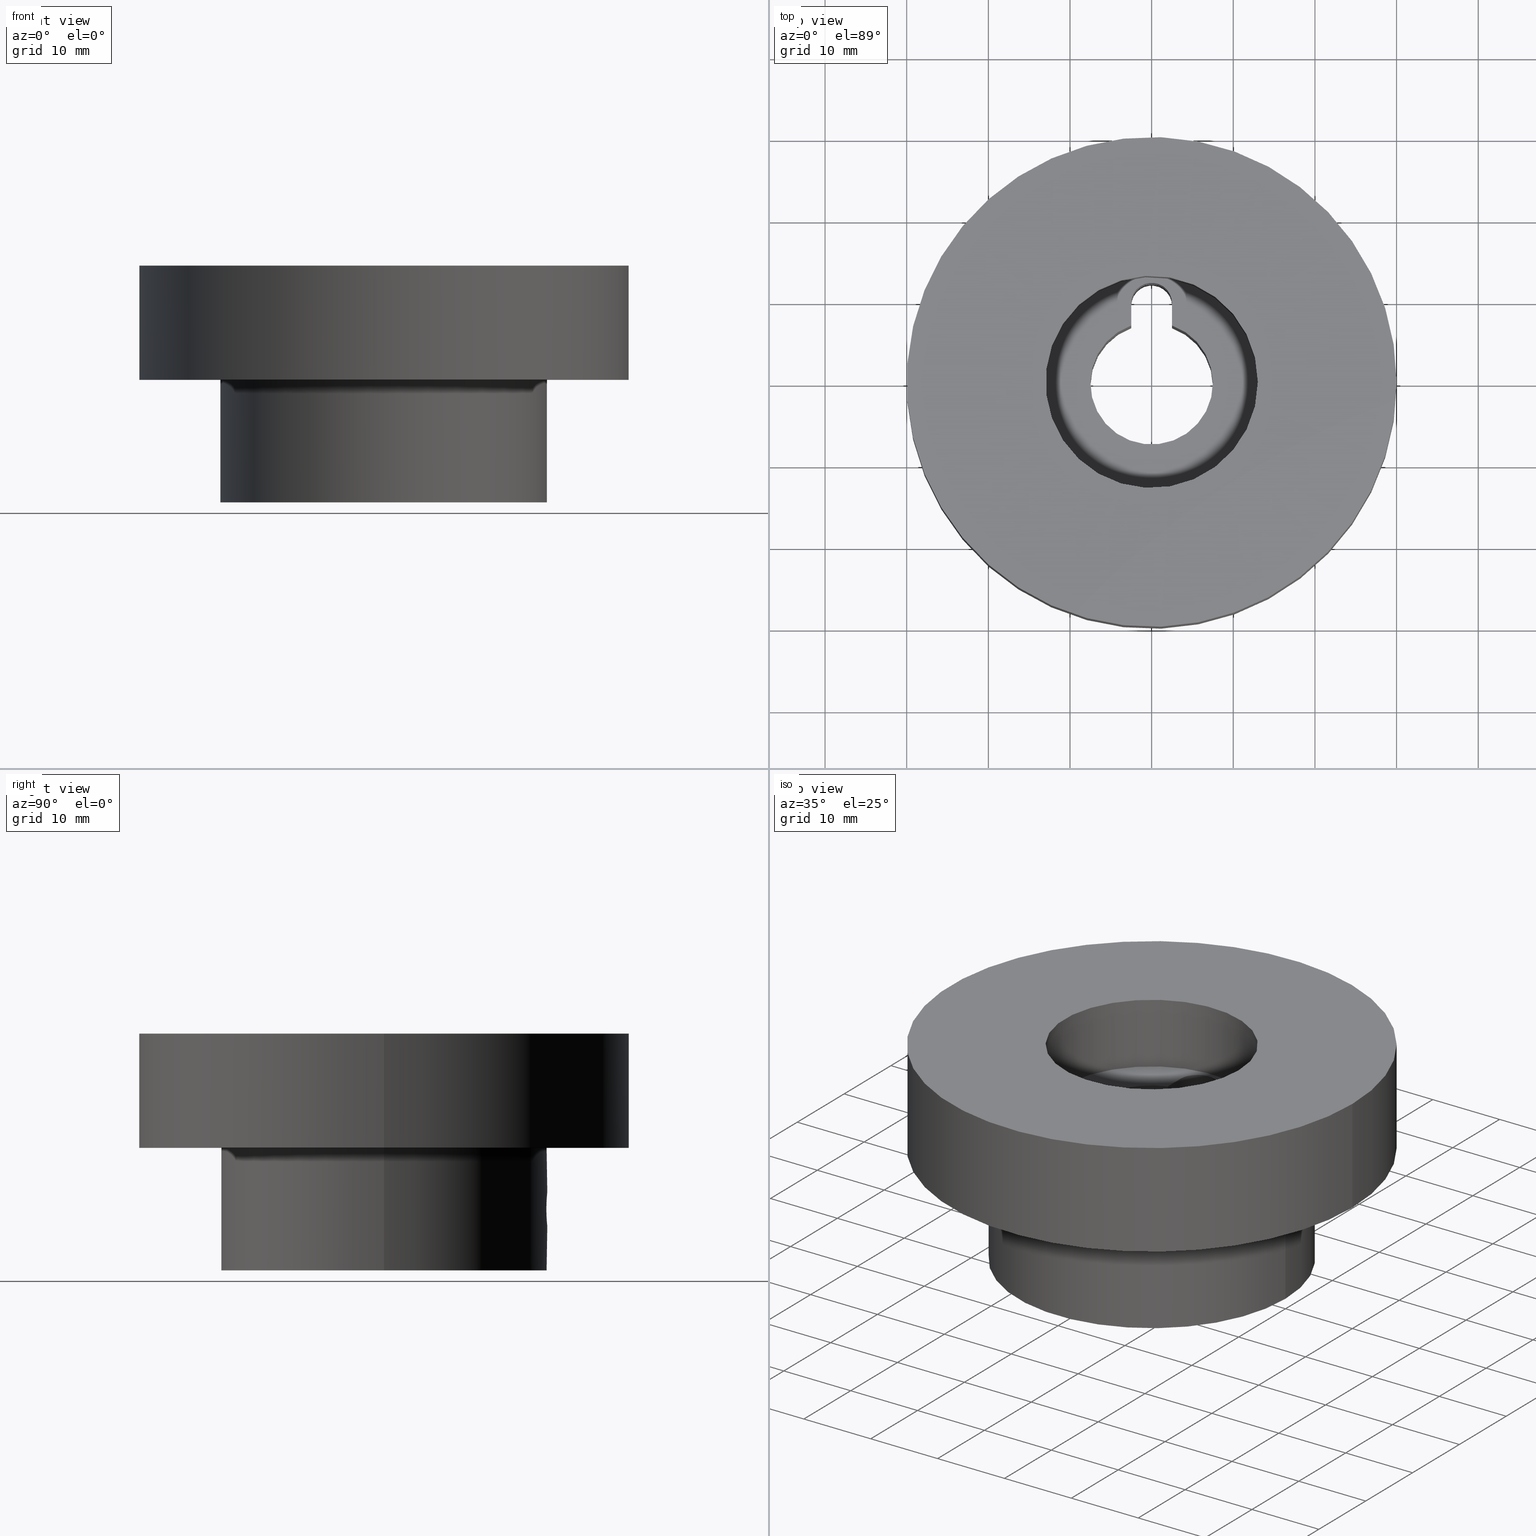
[diagram: canonical four-view strip — front | top / right | iso, engineering-drawing reading convention]
A machine part, canonical four-view strip (front | top / right | iso — engineering-drawing reading convention). The complete STEP part file that produces these views, byte-faithful:
ISO-10303-21;
HEADER;
FILE_DESCRIPTION( ( 'STEP AP203' ), '1' );
FILE_NAME( ' ', '  ', ( '  ' ), ( '  ' ), 'PSStep 10.0', '  ', '  ' );
FILE_SCHEMA( ( 'CONFIG_CONTROL_DESIGN' ) );
ENDSEC;
DATA;
#1 = DESIGN_CONTEXT( '', #93, 'design' );
#2 = APPLICATION_PROTOCOL_DEFINITION( 'INTERNATIONAL STANDARD', 'config_control_design', 1994, #93 );
#3 = PRODUCT_CATEGORY_RELATIONSHIP( 'NONE', 'NONE', #94, #95 );
#4 = DATE_AND_TIME( #96, #97 );
#5 = DATE_TIME_ROLE( 'creation_date' );
#6 = DATE_TIME_ROLE( 'classification_date' );
#7 = PERSON_AND_ORGANIZATION_ROLE( 'creator' );
#8 = PERSON_AND_ORGANIZATION_ROLE( 'design_supplier' );
#9 = PERSON_AND_ORGANIZATION_ROLE( 'classification_officer' );
#10 = PERSON_AND_ORGANIZATION_ROLE( 'design_owner' );
#11 = APPROVAL_PERSON_ORGANIZATION( #98, #99, #100 );
#12 = APPROVAL_DATE_TIME( #4, #99 );
#13 = CC_DESIGN_APPROVAL( #99, ( #101, #102, #103 ) );
#14 = CC_DESIGN_DATE_AND_TIME_ASSIGNMENT( #4, #5, ( #103 ) );
#15 = CC_DESIGN_DATE_AND_TIME_ASSIGNMENT( #4, #6, ( #101 ) );
#16 = CC_DESIGN_PERSON_AND_ORGANIZATION_ASSIGNMENT( #98, #10, ( #104 ) );
#17 = CC_DESIGN_PERSON_AND_ORGANIZATION_ASSIGNMENT( #98, #7, ( #103 ) );
#18 = CC_DESIGN_PERSON_AND_ORGANIZATION_ASSIGNMENT( #98, #7, ( #102 ) );
#19 = CC_DESIGN_PERSON_AND_ORGANIZATION_ASSIGNMENT( #98, #8, ( #102 ) );
#20 = CC_DESIGN_SECURITY_CLASSIFICATION( #101, ( #102 ) );
#21 = CC_DESIGN_PERSON_AND_ORGANIZATION_ASSIGNMENT( #98, #9, ( #101 ) );
#22 = SHAPE_DEFINITION_REPRESENTATION( #105, #106 );
#23 = DESIGN_CONTEXT( '', #107, 'design' );
#24 = APPLICATION_PROTOCOL_DEFINITION( 'INTERNATIONAL STANDARD', 'config_control_design', 1994, #107 );
#25 = PRODUCT_CATEGORY_RELATIONSHIP( 'NONE', 'NONE', #108, #109 );
#26 = DATE_AND_TIME( #110, #111 );
#27 = DATE_TIME_ROLE( 'creation_date' );
#28 = DATE_TIME_ROLE( 'classification_date' );
#29 = PERSON_AND_ORGANIZATION_ROLE( 'creator' );
#30 = PERSON_AND_ORGANIZATION_ROLE( 'design_supplier' );
#31 = PERSON_AND_ORGANIZATION_ROLE( 'classification_officer' );
#32 = PERSON_AND_ORGANIZATION_ROLE( 'design_owner' );
#33 = APPROVAL_PERSON_ORGANIZATION( #112, #113, #114 );
#34 = APPROVAL_DATE_TIME( #26, #113 );
#35 = CC_DESIGN_APPROVAL( #113, ( #115, #116, #117 ) );
#36 = CC_DESIGN_DATE_AND_TIME_ASSIGNMENT( #26, #27, ( #117 ) );
#37 = CC_DESIGN_DATE_AND_TIME_ASSIGNMENT( #26, #28, ( #115 ) );
#38 = CC_DESIGN_PERSON_AND_ORGANIZATION_ASSIGNMENT( #112, #32, ( #118 ) );
#39 = CC_DESIGN_PERSON_AND_ORGANIZATION_ASSIGNMENT( #112, #29, ( #117 ) );
#40 = CC_DESIGN_PERSON_AND_ORGANIZATION_ASSIGNMENT( #112, #29, ( #116 ) );
#41 = CC_DESIGN_PERSON_AND_ORGANIZATION_ASSIGNMENT( #112, #30, ( #116 ) );
#42 = CC_DESIGN_SECURITY_CLASSIFICATION( #115, ( #116 ) );
#43 = CC_DESIGN_PERSON_AND_ORGANIZATION_ASSIGNMENT( #112, #31, ( #115 ) );
#44 = SHAPE_DEFINITION_REPRESENTATION( #119, #120 );
#45 = DESIGN_CONTEXT( '', #121, 'design' );
#46 = APPLICATION_PROTOCOL_DEFINITION( 'INTERNATIONAL STANDARD', 'config_control_design', 1994, #121 );
#47 = PRODUCT_CATEGORY_RELATIONSHIP( 'NONE', 'NONE', #122, #123 );
#48 = DATE_AND_TIME( #124, #125 );
#49 = DATE_TIME_ROLE( 'creation_date' );
#50 = DATE_TIME_ROLE( 'classification_date' );
#51 = PERSON_AND_ORGANIZATION_ROLE( 'creator' );
#52 = PERSON_AND_ORGANIZATION_ROLE( 'design_supplier' );
#53 = PERSON_AND_ORGANIZATION_ROLE( 'classification_officer' );
#54 = PERSON_AND_ORGANIZATION_ROLE( 'design_owner' );
#55 = APPROVAL_PERSON_ORGANIZATION( #126, #127, #128 );
#56 = APPROVAL_DATE_TIME( #48, #127 );
#57 = CC_DESIGN_APPROVAL( #127, ( #129, #130, #131 ) );
#58 = CC_DESIGN_DATE_AND_TIME_ASSIGNMENT( #48, #49, ( #131 ) );
#59 = CC_DESIGN_DATE_AND_TIME_ASSIGNMENT( #48, #50, ( #129 ) );
#60 = CC_DESIGN_PERSON_AND_ORGANIZATION_ASSIGNMENT( #126, #54, ( #132 ) );
#61 = CC_DESIGN_PERSON_AND_ORGANIZATION_ASSIGNMENT( #126, #51, ( #131 ) );
#62 = CC_DESIGN_PERSON_AND_ORGANIZATION_ASSIGNMENT( #126, #51, ( #130 ) );
#63 = CC_DESIGN_PERSON_AND_ORGANIZATION_ASSIGNMENT( #126, #52, ( #130 ) );
#64 = CC_DESIGN_SECURITY_CLASSIFICATION( #129, ( #130 ) );
#65 = CC_DESIGN_PERSON_AND_ORGANIZATION_ASSIGNMENT( #126, #53, ( #129 ) );
#66 = SHAPE_DEFINITION_REPRESENTATION( #133, #134 );
#67 = DESIGN_CONTEXT( '', #135, 'design' );
#68 = APPLICATION_PROTOCOL_DEFINITION( 'INTERNATIONAL STANDARD', 'config_control_design', 1994, #135 );
#69 = PRODUCT_CATEGORY_RELATIONSHIP( 'NONE', 'NONE', #136, #137 );
#70 = DATE_AND_TIME( #138, #139 );
#71 = DATE_TIME_ROLE( 'creation_date' );
#72 = DATE_TIME_ROLE( 'classification_date' );
#73 = PERSON_AND_ORGANIZATION_ROLE( 'creator' );
#74 = PERSON_AND_ORGANIZATION_ROLE( 'design_supplier' );
#75 = PERSON_AND_ORGANIZATION_ROLE( 'classification_officer' );
#76 = PERSON_AND_ORGANIZATION_ROLE( 'design_owner' );
#77 = APPROVAL_PERSON_ORGANIZATION( #140, #141, #142 );
#78 = APPROVAL_DATE_TIME( #70, #141 );
#79 = CC_DESIGN_APPROVAL( #141, ( #143, #144, #145 ) );
#80 = CC_DESIGN_DATE_AND_TIME_ASSIGNMENT( #70, #71, ( #145 ) );
#81 = CC_DESIGN_DATE_AND_TIME_ASSIGNMENT( #70, #72, ( #143 ) );
#82 = CC_DESIGN_PERSON_AND_ORGANIZATION_ASSIGNMENT( #140, #76, ( #146 ) );
#83 = CC_DESIGN_PERSON_AND_ORGANIZATION_ASSIGNMENT( #140, #73, ( #145 ) );
#84 = CC_DESIGN_PERSON_AND_ORGANIZATION_ASSIGNMENT( #140, #73, ( #144 ) );
#85 = CC_DESIGN_PERSON_AND_ORGANIZATION_ASSIGNMENT( #140, #74, ( #144 ) );
#86 = CC_DESIGN_SECURITY_CLASSIFICATION( #143, ( #144 ) );
#87 = CC_DESIGN_PERSON_AND_ORGANIZATION_ASSIGNMENT( #140, #75, ( #143 ) );
#88 = SHAPE_DEFINITION_REPRESENTATION( #147, #148 );
#89 =  ( GEOMETRIC_REPRESENTATION_CONTEXT( 3 )GLOBAL_UNCERTAINTY_ASSIGNED_CONTEXT( ( #151 ) )GLOBAL_UNIT_ASSIGNED_CONTEXT( ( #153, #154, #155 ) )REPRESENTATION_CONTEXT( 'NONE', 'WORKSPACE' ) );
#93 = APPLICATION_CONTEXT( 'CONFIGURATION CONTROLLED 3D DESIGNS OF MECHANICAL PARTS AND ASSEMBLIES' );
#94 = PRODUCT_CATEGORY( 'part', 'NONE' );
#95 = PRODUCT_RELATED_PRODUCT_CATEGORY( 'detail', ' ', ( #104 ) );
#96 = CALENDAR_DATE( 2018, 1, 9 );
#97 = LOCAL_TIME( 9, 1, 27.0000000000000, #157 );
#98 = PERSON_AND_ORGANIZATION( #158, #159 );
#99 = APPROVAL( #160, 'SOLID MODEL' );
#100 = APPROVAL_ROLE( 'APPROVED' );
#101 = SECURITY_CLASSIFICATION( '', '', #161 );
#102 = PRODUCT_DEFINITION_FORMATION_WITH_SPECIFIED_SOURCE( ' ', 'NONE', #104, .NOT_KNOWN. );
#103 = PRODUCT_DEFINITION( 'NONE', 'NONE', #102, #1 );
#104 = PRODUCT( '1', '1', 'PART-1-DESC', ( #162 ) );
#105 = PRODUCT_DEFINITION_SHAPE( 'NONE', 'NONE', #103 );
#106 = ADVANCED_BREP_SHAPE_REPRESENTATION( '1', ( #163, #164 ), #89 );
#107 = APPLICATION_CONTEXT( 'CONFIGURATION CONTROLLED 3D DESIGNS OF MECHANICAL PARTS AND ASSEMBLIES' );
#108 = PRODUCT_CATEGORY( 'part', 'NONE' );
#109 = PRODUCT_RELATED_PRODUCT_CATEGORY( 'detail', ' ', ( #118 ) );
#110 = CALENDAR_DATE( 2018, 1, 9 );
#111 = LOCAL_TIME( 9, 1, 27.0000000000000, #165 );
#112 = PERSON_AND_ORGANIZATION( #166, #167 );
#113 = APPROVAL( #168, 'SOLID MODEL' );
#114 = APPROVAL_ROLE( 'APPROVED' );
#115 = SECURITY_CLASSIFICATION( '', '', #169 );
#116 = PRODUCT_DEFINITION_FORMATION_WITH_SPECIFIED_SOURCE( ' ', 'NONE', #118, .NOT_KNOWN. );
#117 = PRODUCT_DEFINITION( 'NONE', 'NONE', #116, #23 );
#118 = PRODUCT( '2', '2', 'PART-2-DESC', ( #170 ) );
#119 = PRODUCT_DEFINITION_SHAPE( 'NONE', 'NONE', #117 );
#120 = ADVANCED_BREP_SHAPE_REPRESENTATION( '2', ( #171, #172 ), #89 );
#121 = APPLICATION_CONTEXT( 'CONFIGURATION CONTROLLED 3D DESIGNS OF MECHANICAL PARTS AND ASSEMBLIES' );
#122 = PRODUCT_CATEGORY( 'part', 'NONE' );
#123 = PRODUCT_RELATED_PRODUCT_CATEGORY( 'detail', ' ', ( #132 ) );
#124 = CALENDAR_DATE( 2018, 1, 9 );
#125 = LOCAL_TIME( 9, 1, 27.0000000000000, #173 );
#126 = PERSON_AND_ORGANIZATION( #174, #175 );
#127 = APPROVAL( #176, 'SOLID MODEL' );
#128 = APPROVAL_ROLE( 'APPROVED' );
#129 = SECURITY_CLASSIFICATION( '', '', #177 );
#130 = PRODUCT_DEFINITION_FORMATION_WITH_SPECIFIED_SOURCE( ' ', 'NONE', #132, .NOT_KNOWN. );
#131 = PRODUCT_DEFINITION( 'NONE', 'NONE', #130, #45 );
#132 = PRODUCT( 'Assem1', 'Assem1', 'PART-Assem1-DESC', ( #178 ) );
#133 = PRODUCT_DEFINITION_SHAPE( 'NONE', 'NONE', #131 );
#134 = ADVANCED_BREP_SHAPE_REPRESENTATION( 'Assem1', ( #179, #180 ), #89 );
#135 = APPLICATION_CONTEXT( 'CONFIGURATION CONTROLLED 3D DESIGNS OF MECHANICAL PARTS AND ASSEMBLIES' );
#136 = PRODUCT_CATEGORY( 'part', 'NONE' );
#137 = PRODUCT_RELATED_PRODUCT_CATEGORY( 'detail', ' ', ( #146 ) );
#138 = CALENDAR_DATE( 2018, 1, 9 );
#139 = LOCAL_TIME( 9, 1, 27.0000000000000, #181 );
#140 = PERSON_AND_ORGANIZATION( #182, #183 );
#141 = APPROVAL( #184, 'SOLID MODEL' );
#142 = APPROVAL_ROLE( 'APPROVED' );
#143 = SECURITY_CLASSIFICATION( '', '', #185 );
#144 = PRODUCT_DEFINITION_FORMATION_WITH_SPECIFIED_SOURCE( ' ', 'NONE', #146, .NOT_KNOWN. );
#145 = PRODUCT_DEFINITION( 'NONE', 'NONE', #144, #67 );
#146 = PRODUCT( '3', '3', 'PART-3-DESC', ( #186 ) );
#147 = PRODUCT_DEFINITION_SHAPE( 'NONE', 'NONE', #145 );
#148 = ADVANCED_BREP_SHAPE_REPRESENTATION( '3', ( #187 ), #89 );
#151 = UNCERTAINTY_MEASURE_WITH_UNIT( LENGTH_MEASURE( 0.00100000000000000 ), #153, '', '' );
#153 =  ( CONVERSION_BASED_UNIT( 'MILLIMETRE', #190 )LENGTH_UNIT(  )NAMED_UNIT( #193 ) );
#154 =  ( NAMED_UNIT( #195 )PLANE_ANGLE_UNIT(  )SI_UNIT( $, .RADIAN. ) );
#155 =  ( NAMED_UNIT( #195 )SI_UNIT( $, .STERADIAN. )SOLID_ANGLE_UNIT(  ) );
#157 = COORDINATED_UNIVERSAL_TIME_OFFSET( 9, 0, .AHEAD. );
#158 = PERSON( '', 'UNSPECIFIED', $, $, $, $ );
#159 = ORGANIZATION( 'UNSPECIFIED', 'UNSPECIFIED', 'UNSPECIFIED' );
#160 = APPROVAL_STATUS( 'approved' );
#161 = SECURITY_CLASSIFICATION_LEVEL( 'unclassified' );
#162 = MECHANICAL_CONTEXT( '', #93, 'mechanical' );
#163 = MANIFOLD_SOLID_BREP( '1', #201 );
#164 = AXIS2_PLACEMENT_3D( '', #202, #203, #204 );
#165 = COORDINATED_UNIVERSAL_TIME_OFFSET( 9, 0, .AHEAD. );
#166 = PERSON( '', 'UNSPECIFIED', $, $, $, $ );
#167 = ORGANIZATION( 'UNSPECIFIED', 'UNSPECIFIED', 'UNSPECIFIED' );
#168 = APPROVAL_STATUS( 'approved' );
#169 = SECURITY_CLASSIFICATION_LEVEL( 'unclassified' );
#170 = MECHANICAL_CONTEXT( '', #107, 'mechanical' );
#171 = MANIFOLD_SOLID_BREP( '2', #205 );
#172 = AXIS2_PLACEMENT_3D( '', #206, #207, #208 );
#173 = COORDINATED_UNIVERSAL_TIME_OFFSET( 9, 0, .AHEAD. );
#174 = PERSON( '', 'UNSPECIFIED', $, $, $, $ );
#175 = ORGANIZATION( 'UNSPECIFIED', 'UNSPECIFIED', 'UNSPECIFIED' );
#176 = APPROVAL_STATUS( 'approved' );
#177 = SECURITY_CLASSIFICATION_LEVEL( 'unclassified' );
#178 = MECHANICAL_CONTEXT( '', #121, 'mechanical' );
#179 = MAPPED_ITEM( '', #209, #210 );
#180 = AXIS2_PLACEMENT_3D( '', #211, #212, #213 );
#181 = COORDINATED_UNIVERSAL_TIME_OFFSET( 9, 0, .AHEAD. );
#182 = PERSON( '', 'UNSPECIFIED', $, $, $, $ );
#183 = ORGANIZATION( 'UNSPECIFIED', 'UNSPECIFIED', 'UNSPECIFIED' );
#184 = APPROVAL_STATUS( 'approved' );
#185 = SECURITY_CLASSIFICATION_LEVEL( 'unclassified' );
#186 = MECHANICAL_CONTEXT( '', #135, 'mechanical' );
#187 = MANIFOLD_SOLID_BREP( '3', #214 );
#190 = LENGTH_MEASURE_WITH_UNIT( LENGTH_MEASURE( 1.00000000000000 ), #215 );
#193 = DIMENSIONAL_EXPONENTS( 1.00000000000000, 0.000000000000000, 0.000000000000000, 0.000000000000000, 0.000000000000000, 0.000000000000000, 0.000000000000000 );
#195 = DIMENSIONAL_EXPONENTS( 0.000000000000000, 0.000000000000000, 0.000000000000000, 0.000000000000000, 0.000000000000000, 0.000000000000000, 0.000000000000000 );
#201 = CLOSED_SHELL( '', ( #216, #217, #218, #219, #220, #221, #222, #223, #224, #225, #226, #227 ) );
#202 = CARTESIAN_POINT( '', ( 0.000000000000000, 0.000000000000000, 0.000000000000000 ) );
#203 = DIRECTION( '', ( 0.000000000000000, 0.000000000000000, 1.00000000000000 ) );
#204 = DIRECTION( '', ( 1.00000000000000, 0.000000000000000, 0.000000000000000 ) );
#205 = CLOSED_SHELL( '', ( #228, #229, #230, #231 ) );
#206 = CARTESIAN_POINT( '', ( 0.000000000000000, 0.000000000000000, 0.000000000000000 ) );
#207 = DIRECTION( '', ( 0.000000000000000, 0.000000000000000, 1.00000000000000 ) );
#208 = DIRECTION( '', ( 1.00000000000000, 0.000000000000000, 0.000000000000000 ) );
#209 = REPRESENTATION_MAP( #180, #148 );
#210 = AXIS2_PLACEMENT_3D( '', #232, #233, #234 );
#211 = CARTESIAN_POINT( '', ( 0.000000000000000, 0.000000000000000, 0.000000000000000 ) );
#212 = DIRECTION( '', ( 0.000000000000000, 0.000000000000000, 1.00000000000000 ) );
#213 = DIRECTION( '', ( 1.00000000000000, 0.000000000000000, 0.000000000000000 ) );
#214 = CLOSED_SHELL( '', ( #235, #236, #237, #238, #239, #240, #241, #242, #243, #244, #245 ) );
#215 =  ( LENGTH_UNIT(  )NAMED_UNIT( #193 )SI_UNIT( .MILLI., .METRE. ) );
#216 = ADVANCED_FACE( '', ( #247, #248 ), #249, .T. );
#217 = ADVANCED_FACE( '', ( #250, #251 ), #252, .T. );
#218 = ADVANCED_FACE( '', ( #253 ), #254, .T. );
#219 = ADVANCED_FACE( '', ( #255 ), #256, .F. );
#220 = ADVANCED_FACE( '', ( #257, #258 ), #259, .F. );
#221 = ADVANCED_FACE( '', ( #260 ), #261, .T. );
#222 = ADVANCED_FACE( '', ( #262, #263 ), #264, .F. );
#223 = ADVANCED_FACE( '', ( #265, #266, #267 ), #268, .T. );
#224 = ADVANCED_FACE( '', ( #269, #270 ), #271, .F. );
#225 = ADVANCED_FACE( '', ( #272, #273 ), #274, .T. );
#226 = ADVANCED_FACE( '', ( #275, #276 ), #277, .F. );
#227 = ADVANCED_FACE( '', ( #278, #279 ), #280, .F. );
#228 = ADVANCED_FACE( '', ( #281, #282 ), #283, .T. );
#229 = ADVANCED_FACE( '', ( #284, #285 ), #286, .T. );
#230 = ADVANCED_FACE( '', ( #287, #288 ), #289, .F. );
#231 = ADVANCED_FACE( '', ( #290, #291 ), #292, .F. );
#232 = CARTESIAN_POINT( '', ( 0.000000000000000, 0.000000000000000, 0.000000000000000 ) );
#233 = DIRECTION( '', ( 0.000000000000000, 0.000000000000000, 1.00000000000000 ) );
#234 = DIRECTION( '', ( 1.00000000000000, 0.000000000000000, 0.000000000000000 ) );
#235 = ADVANCED_FACE( '', ( #293, #294 ), #295, .T. );
#236 = ADVANCED_FACE( '', ( #296, #297 ), #298, .F. );
#237 = ADVANCED_FACE( '', ( #299 ), #300, .T. );
#238 = ADVANCED_FACE( '', ( #301 ), #302, .T. );
#239 = ADVANCED_FACE( '', ( #303 ), #304, .T. );
#240 = ADVANCED_FACE( '', ( #305 ), #306, .T. );
#241 = ADVANCED_FACE( '', ( #307 ), #308, .T. );
#242 = ADVANCED_FACE( '', ( #309 ), #310, .T. );
#243 = ADVANCED_FACE( '', ( #311 ), #312, .T. );
#244 = ADVANCED_FACE( '', ( #313, #314 ), #315, .T. );
#245 = ADVANCED_FACE( '', ( #316, #317 ), #318, .T. );
#247 = FACE_OUTER_BOUND( '', #319, .T. );
#248 = FACE_BOUND( '', #320, .T. );
#249 = PLANE( '', #321 );
#250 = FACE_OUTER_BOUND( '', #322, .T. );
#251 = FACE_OUTER_BOUND( '', #323, .T. );
#252 = CYLINDRICAL_SURFACE( '', #324, 30.0000000000000 );
#253 = FACE_OUTER_BOUND( '', #325, .T. );
#254 = PLANE( '', #326 );
#255 = FACE_OUTER_BOUND( '', #327, .T. );
#256 = CYLINDRICAL_SURFACE( '', #328, 7.50000000000000 );
#257 = FACE_OUTER_BOUND( '', #329, .T. );
#258 = FACE_BOUND( '', #330, .T. );
#259 = PLANE( '', #331 );
#260 = FACE_OUTER_BOUND( '', #332, .T. );
#261 = PLANE( '', #333 );
#262 = FACE_OUTER_BOUND( '', #334, .T. );
#263 = FACE_OUTER_BOUND( '', #335, .T. );
#264 = CYLINDRICAL_SURFACE( '', #336, 2.10000000000000 );
#265 = FACE_BOUND( '', #337, .T. );
#266 = FACE_OUTER_BOUND( '', #338, .T. );
#267 = FACE_OUTER_BOUND( '', #339, .T. );
#268 = CYLINDRICAL_SURFACE( '', #340, 20.0000000000000 );
#269 = FACE_OUTER_BOUND( '', #341, .T. );
#270 = FACE_OUTER_BOUND( '', #342, .T. );
#271 = CYLINDRICAL_SURFACE( '', #343, 13.0000000000000 );
#272 = FACE_BOUND( '', #344, .T. );
#273 = FACE_OUTER_BOUND( '', #345, .T. );
#274 = PLANE( '', #346 );
#275 = FACE_OUTER_BOUND( '', #347, .T. );
#276 = FACE_BOUND( '', #348, .T. );
#277 = PLANE( '', #349 );
#278 = FACE_BOUND( '', #350, .T. );
#279 = FACE_OUTER_BOUND( '', #351, .T. );
#280 = CYLINDRICAL_SURFACE( '', #352, 2.50000000000000 );
#281 = FACE_OUTER_BOUND( '', #353, .T. );
#282 = FACE_BOUND( '', #354, .T. );
#283 = PLANE( '', #355 );
#284 = FACE_OUTER_BOUND( '', #356, .T. );
#285 = FACE_OUTER_BOUND( '', #357, .T. );
#286 = CYLINDRICAL_SURFACE( '', #358, 30.0000000000000 );
#287 = FACE_OUTER_BOUND( '', #359, .T. );
#288 = FACE_OUTER_BOUND( '', #360, .T. );
#289 = CYLINDRICAL_SURFACE( '', #361, 13.0000000000000 );
#290 = FACE_BOUND( '', #362, .T. );
#291 = FACE_OUTER_BOUND( '', #363, .T. );
#292 = PLANE( '', #364 );
#293 = FACE_OUTER_BOUND( '', #365, .T. );
#294 = FACE_BOUND( '', #366, .T. );
#295 = CONICAL_SURFACE( '', #367, 2.50000000000000, 1.10714871779409 );
#296 = FACE_OUTER_BOUND( '', #368, .T. );
#297 = FACE_BOUND( '', #369, .T. );
#298 = CONICAL_SURFACE( '', #370, 865.768710878332, 1.04668439341312 );
#299 = FACE_OUTER_BOUND( '', #371, .T. );
#300 = PLANE( '', #372 );
#301 = FACE_OUTER_BOUND( '', #373, .T. );
#302 = PLANE( '', #374 );
#303 = FACE_OUTER_BOUND( '', #375, .T. );
#304 = PLANE( '', #376 );
#305 = FACE_OUTER_BOUND( '', #377, .T. );
#306 = PLANE( '', #378 );
#307 = FACE_OUTER_BOUND( '', #379, .T. );
#308 = PLANE( '', #380 );
#309 = FACE_OUTER_BOUND( '', #381, .T. );
#310 = PLANE( '', #382 );
#311 = FACE_OUTER_BOUND( '', #383, .T. );
#312 = PLANE( '', #384 );
#313 = FACE_OUTER_BOUND( '', #385, .T. );
#314 = FACE_OUTER_BOUND( '', #386, .T. );
#315 = CYLINDRICAL_SURFACE( '', #387, 2.50000000000000 );
#316 = FACE_OUTER_BOUND( '', #388, .T. );
#317 = FACE_BOUND( '', #389, .T. );
#318 = CONICAL_SURFACE( '', #390, 1.25000000000000, 0.785398163397448 );
#319 = EDGE_LOOP( '', ( #391 ) );
#320 = EDGE_LOOP( '', ( #392, #393, #394, #395 ) );
#321 = AXIS2_PLACEMENT_3D( '', #396, #397, #398 );
#322 = EDGE_LOOP( '', ( #399 ) );
#323 = EDGE_LOOP( '', ( #400 ) );
#324 = AXIS2_PLACEMENT_3D( '', #401, #402, #403 );
#325 = EDGE_LOOP( '', ( #404, #405, #406, #407 ) );
#326 = AXIS2_PLACEMENT_3D( '', #408, #409, #410 );
#327 = EDGE_LOOP( '', ( #411, #412, #413, #414 ) );
#328 = AXIS2_PLACEMENT_3D( '', #415, #416, #417 );
#329 = EDGE_LOOP( '', ( #418 ) );
#330 = EDGE_LOOP( '', ( #419, #420, #421, #422 ) );
#331 = AXIS2_PLACEMENT_3D( '', #423, #424, #425 );
#332 = EDGE_LOOP( '', ( #426, #427, #428, #429 ) );
#333 = AXIS2_PLACEMENT_3D( '', #430, #431, #432 );
#334 = EDGE_LOOP( '', ( #433 ) );
#335 = EDGE_LOOP( '', ( #434 ) );
#336 = AXIS2_PLACEMENT_3D( '', #435, #436, #437 );
#337 = EDGE_LOOP( '', ( #438 ) );
#338 = EDGE_LOOP( '', ( #439 ) );
#339 = EDGE_LOOP( '', ( #440 ) );
#340 = AXIS2_PLACEMENT_3D( '', #441, #442, #443 );
#341 = EDGE_LOOP( '', ( #444 ) );
#342 = EDGE_LOOP( '', ( #445 ) );
#343 = AXIS2_PLACEMENT_3D( '', #446, #447, #448 );
#344 = EDGE_LOOP( '', ( #449 ) );
#345 = EDGE_LOOP( '', ( #450 ) );
#346 = AXIS2_PLACEMENT_3D( '', #451, #452, #453 );
#347 = EDGE_LOOP( '', ( #454 ) );
#348 = EDGE_LOOP( '', ( #455 ) );
#349 = AXIS2_PLACEMENT_3D( '', #456, #457, #458 );
#350 = EDGE_LOOP( '', ( #459 ) );
#351 = EDGE_LOOP( '', ( #460, #461, #462, #463 ) );
#352 = AXIS2_PLACEMENT_3D( '', #464, #465, #466 );
#353 = EDGE_LOOP( '', ( #467 ) );
#354 = EDGE_LOOP( '', ( #468 ) );
#355 = AXIS2_PLACEMENT_3D( '', #469, #470, #471 );
#356 = EDGE_LOOP( '', ( #472 ) );
#357 = EDGE_LOOP( '', ( #473 ) );
#358 = AXIS2_PLACEMENT_3D( '', #474, #475, #476 );
#359 = EDGE_LOOP( '', ( #477 ) );
#360 = EDGE_LOOP( '', ( #478 ) );
#361 = AXIS2_PLACEMENT_3D( '', #479, #480, #481 );
#362 = EDGE_LOOP( '', ( #482 ) );
#363 = EDGE_LOOP( '', ( #483 ) );
#364 = AXIS2_PLACEMENT_3D( '', #484, #485, #486 );
#365 = EDGE_LOOP( '', ( #487 ) );
#366 = EDGE_LOOP( '', ( #488, #489, #490, #491, #492, #493 ) );
#367 = AXIS2_PLACEMENT_3D( '', #494, #495, #496 );
#368 = EDGE_LOOP( '', ( #497 ) );
#369 = VERTEX_LOOP( '', #498 );
#370 = AXIS2_PLACEMENT_3D( '', #499, #500, #501 );
#371 = EDGE_LOOP( '', ( #502, #503, #504, #505 ) );
#372 = AXIS2_PLACEMENT_3D( '', #506, #507, #508 );
#373 = EDGE_LOOP( '', ( #509, #510, #511, #512 ) );
#374 = AXIS2_PLACEMENT_3D( '', #513, #514, #515 );
#375 = EDGE_LOOP( '', ( #516, #517, #518, #519, #520, #521 ) );
#376 = AXIS2_PLACEMENT_3D( '', #522, #523, #524 );
#377 = EDGE_LOOP( '', ( #525, #526, #527, #528 ) );
#378 = AXIS2_PLACEMENT_3D( '', #529, #530, #531 );
#379 = EDGE_LOOP( '', ( #532, #533, #534, #535 ) );
#380 = AXIS2_PLACEMENT_3D( '', #536, #537, #538 );
#381 = EDGE_LOOP( '', ( #539, #540, #541, #542 ) );
#382 = AXIS2_PLACEMENT_3D( '', #543, #544, #545 );
#383 = EDGE_LOOP( '', ( #546, #547, #548, #549 ) );
#384 = AXIS2_PLACEMENT_3D( '', #550, #551, #552 );
#385 = EDGE_LOOP( '', ( #553 ) );
#386 = EDGE_LOOP( '', ( #554 ) );
#387 = AXIS2_PLACEMENT_3D( '', #555, #556, #557 );
#388 = EDGE_LOOP( '', ( #558 ) );
#389 = EDGE_LOOP( '', ( #559 ) );
#390 = AXIS2_PLACEMENT_3D( '', #560, #561, #562 );
#391 = ORIENTED_EDGE( '', *, *, #563, .F. );
#392 = ORIENTED_EDGE( '', *, *, #564, .F. );
#393 = ORIENTED_EDGE( '', *, *, #565, .F. );
#394 = ORIENTED_EDGE( '', *, *, #566, .F. );
#395 = ORIENTED_EDGE( '', *, *, #567, .F. );
#396 = CARTESIAN_POINT( '', ( 0.000000000000000, 0.000000000000000, -39.0000000000000 ) );
#397 = DIRECTION( '', ( 0.000000000000000, 0.000000000000000, -1.00000000000000 ) );
#398 = DIRECTION( '', ( 1.00000000000000, 0.000000000000000, 0.000000000000000 ) );
#399 = ORIENTED_EDGE( '', *, *, #568, .T. );
#400 = ORIENTED_EDGE( '', *, *, #569, .F. );
#401 = CARTESIAN_POINT( '', ( 0.000000000000000, 0.000000000000000, -24.0000000000000 ) );
#402 = DIRECTION( '', ( -0.000000000000000, 0.000000000000000, -1.00000000000000 ) );
#403 = DIRECTION( '', ( -1.00000000000000, 0.000000000000000, 0.000000000000000 ) );
#404 = ORIENTED_EDGE( '', *, *, #564, .T. );
#405 = ORIENTED_EDGE( '', *, *, #570, .F. );
#406 = ORIENTED_EDGE( '', *, *, #571, .F. );
#407 = ORIENTED_EDGE( '', *, *, #572, .T. );
#408 = CARTESIAN_POINT( '', ( -2.50000000000000, 7.07106781186548, 35.8146259549836 ) );
#409 = DIRECTION( '', ( 1.00000000000000, -6.12303176911189E-017, 0.000000000000000 ) );
#410 = DIRECTION( '', ( 6.12303176911189E-017, 1.00000000000000, 0.000000000000000 ) );
#411 = ORIENTED_EDGE( '', *, *, #565, .T. );
#412 = ORIENTED_EDGE( '', *, *, #572, .F. );
#413 = ORIENTED_EDGE( '', *, *, #573, .F. );
#414 = ORIENTED_EDGE( '', *, *, #574, .T. );
#415 = CARTESIAN_POINT( '', ( 0.000000000000000, 0.000000000000000, 35.8146259549836 ) );
#416 = DIRECTION( '', ( -0.000000000000000, -0.000000000000000, 1.00000000000000 ) );
#417 = DIRECTION( '', ( -1.00000000000000, 6.12303176911189E-017, 0.000000000000000 ) );
#418 = ORIENTED_EDGE( '', *, *, #575, .T. );
#419 = ORIENTED_EDGE( '', *, *, #576, .T. );
#420 = ORIENTED_EDGE( '', *, *, #577, .T. );
#421 = ORIENTED_EDGE( '', *, *, #573, .T. );
#422 = ORIENTED_EDGE( '', *, *, #571, .T. );
#423 = CARTESIAN_POINT( '', ( 3.46944695195361E-015, 0.000000000000000, -19.0000000000000 ) );
#424 = DIRECTION( '', ( 0.000000000000000, 0.000000000000000, -1.00000000000000 ) );
#425 = DIRECTION( '', ( 1.00000000000000, 0.000000000000000, 0.000000000000000 ) );
#426 = ORIENTED_EDGE( '', *, *, #566, .T. );
#427 = ORIENTED_EDGE( '', *, *, #574, .F. );
#428 = ORIENTED_EDGE( '', *, *, #577, .F. );
#429 = ORIENTED_EDGE( '', *, *, #578, .T. );
#430 = CARTESIAN_POINT( '', ( 2.50000000000000, 9.80000000000000, 35.8146259549836 ) );
#431 = DIRECTION( '', ( -1.00000000000000, 6.12303176911189E-017, 0.000000000000000 ) );
#432 = DIRECTION( '', ( -6.12303176911189E-017, -1.00000000000000, -0.000000000000000 ) );
#433 = ORIENTED_EDGE( '', *, *, #579, .F. );
#434 = ORIENTED_EDGE( '', *, *, #580, .T. );
#435 = CARTESIAN_POINT( '', ( 3.76574542865376E-015, 20.0000000000000, -31.5000000000000 ) );
#436 = DIRECTION( '', ( -1.22464679914735E-016, -1.00000000000000, -0.000000000000000 ) );
#437 = DIRECTION( '', ( -1.00000000000000, 1.22464679914735E-016, 0.000000000000000 ) );
#438 = ORIENTED_EDGE( '', *, *, #580, .F. );
#439 = ORIENTED_EDGE( '', *, *, #563, .T. );
#440 = ORIENTED_EDGE( '', *, *, #581, .F. );
#441 = CARTESIAN_POINT( '', ( 0.000000000000000, 0.000000000000000, -39.0000000000000 ) );
#442 = DIRECTION( '', ( -0.000000000000000, 0.000000000000000, -1.00000000000000 ) );
#443 = DIRECTION( '', ( -1.00000000000000, 0.000000000000000, 0.000000000000000 ) );
#444 = ORIENTED_EDGE( '', *, *, #575, .F. );
#445 = ORIENTED_EDGE( '', *, *, #582, .F. );
#446 = CARTESIAN_POINT( '', ( 3.46944695195361E-015, 0.000000000000000, -19.0000000000000 ) );
#447 = DIRECTION( '', ( -0.000000000000000, 0.000000000000000, -1.00000000000000 ) );
#448 = DIRECTION( '', ( -1.00000000000000, 0.000000000000000, 0.000000000000000 ) );
#449 = ORIENTED_EDGE( '', *, *, #581, .T. );
#450 = ORIENTED_EDGE( '', *, *, #568, .F. );
#451 = CARTESIAN_POINT( '', ( 0.000000000000000, 0.000000000000000, -24.0000000000000 ) );
#452 = DIRECTION( '', ( 0.000000000000000, 0.000000000000000, -1.00000000000000 ) );
#453 = DIRECTION( '', ( 1.00000000000000, 0.000000000000000, 0.000000000000000 ) );
#454 = ORIENTED_EDGE( '', *, *, #569, .T. );
#455 = ORIENTED_EDGE( '', *, *, #582, .T. );
#456 = CARTESIAN_POINT( '', ( 0.000000000000000, 0.000000000000000, -14.0000000000000 ) );
#457 = DIRECTION( '', ( 0.000000000000000, 0.000000000000000, -1.00000000000000 ) );
#458 = DIRECTION( '', ( 1.00000000000000, 0.000000000000000, 0.000000000000000 ) );
#459 = ORIENTED_EDGE( '', *, *, #579, .T. );
#460 = ORIENTED_EDGE( '', *, *, #567, .T. );
#461 = ORIENTED_EDGE( '', *, *, #578, .F. );
#462 = ORIENTED_EDGE( '', *, *, #576, .F. );
#463 = ORIENTED_EDGE( '', *, *, #570, .T. );
#464 = CARTESIAN_POINT( '', ( 0.000000000000000, 9.80000000000000, 35.8146259549836 ) );
#465 = DIRECTION( '', ( -0.000000000000000, -0.000000000000000, 1.00000000000000 ) );
#466 = DIRECTION( '', ( -1.00000000000000, 6.12303176911189E-017, 0.000000000000000 ) );
#467 = ORIENTED_EDGE( '', *, *, #583, .F. );
#468 = ORIENTED_EDGE( '', *, *, #584, .F. );
#469 = CARTESIAN_POINT( '', ( 0.000000000000000, 0.000000000000000, -14.0000000000000 ) );
#470 = DIRECTION( '', ( 0.000000000000000, 0.000000000000000, -1.00000000000000 ) );
#471 = DIRECTION( '', ( 1.00000000000000, 0.000000000000000, 0.000000000000000 ) );
#472 = ORIENTED_EDGE( '', *, *, #583, .T. );
#473 = ORIENTED_EDGE( '', *, *, #585, .F. );
#474 = CARTESIAN_POINT( '', ( 0.000000000000000, 0.000000000000000, -14.0000000000000 ) );
#475 = DIRECTION( '', ( -0.000000000000000, 0.000000000000000, -1.00000000000000 ) );
#476 = DIRECTION( '', ( -1.00000000000000, 0.000000000000000, 0.000000000000000 ) );
#477 = ORIENTED_EDGE( '', *, *, #584, .T. );
#478 = ORIENTED_EDGE( '', *, *, #586, .T. );
#479 = CARTESIAN_POINT( '', ( 3.46944695195361E-015, 0.000000000000000, -19.0000000000000 ) );
#480 = DIRECTION( '', ( -0.000000000000000, 0.000000000000000, -1.00000000000000 ) );
#481 = DIRECTION( '', ( -1.00000000000000, 0.000000000000000, 0.000000000000000 ) );
#482 = ORIENTED_EDGE( '', *, *, #586, .F. );
#483 = ORIENTED_EDGE( '', *, *, #585, .T. );
#484 = CARTESIAN_POINT( '', ( 0.000000000000000, 0.000000000000000, -10.0000000000000 ) );
#485 = DIRECTION( '', ( 0.000000000000000, 0.000000000000000, -1.00000000000000 ) );
#486 = DIRECTION( '', ( 1.00000000000000, 0.000000000000000, 0.000000000000000 ) );
#487 = ORIENTED_EDGE( '', *, *, #587, .F. );
#488 = ORIENTED_EDGE( '', *, *, #588, .T. );
#489 = ORIENTED_EDGE( '', *, *, #589, .T. );
#490 = ORIENTED_EDGE( '', *, *, #590, .T. );
#491 = ORIENTED_EDGE( '', *, *, #591, .T. );
#492 = ORIENTED_EDGE( '', *, *, #592, .T. );
#493 = ORIENTED_EDGE( '', *, *, #593, .T. );
#494 = CARTESIAN_POINT( '', ( 3.49315887335632E-015, 17.7741618604872, -31.5000000000000 ) );
#495 = DIRECTION( '', ( -1.22464679914735E-016, -1.00000000000000, -0.000000000000000 ) );
#496 = DIRECTION( '', ( 1.00000000000000, -1.22464679914735E-016, 0.000000000000000 ) );
#497 = ORIENTED_EDGE( '', *, *, #594, .T. );
#498 = VERTEX_POINT( '', #595 );
#499 = CARTESIAN_POINT( '', ( -5.83633588774030E-014, -487.322636610927, -31.5000000000000 ) );
#500 = DIRECTION( '', ( -1.22464679914735E-016, -1.00000000000000, -0.000000000000000 ) );
#501 = DIRECTION( '', ( 1.00000000000000, -1.22464679914735E-016, 0.000000000000000 ) );
#502 = ORIENTED_EDGE( '', *, *, #596, .T. );
#503 = ORIENTED_EDGE( '', *, *, #597, .F. );
#504 = ORIENTED_EDGE( '', *, *, #598, .F. );
#505 = ORIENTED_EDGE( '', *, *, #591, .F. );
#506 = CARTESIAN_POINT( '', ( -1.25000000000000, 24.6727803559829, -32.2216878364870 ) );
#507 = DIRECTION( '', ( 1.00000000000000, -1.22464679914735E-016, 3.00462919747432E-016 ) );
#508 = DIRECTION( '', ( 3.00462919747432E-016, -3.67960952931160E-032, -1.00000000000000 ) );
#509 = ORIENTED_EDGE( '', *, *, #599, .T. );
#510 = ORIENTED_EDGE( '', *, *, #600, .F. );
#511 = ORIENTED_EDGE( '', *, *, #596, .F. );
#512 = ORIENTED_EDGE( '', *, *, #590, .F. );
#513 = CARTESIAN_POINT( '', ( -1.25000000000000, 24.6727803559829, -30.7783121635130 ) );
#514 = DIRECTION( '', ( 0.500000000000000, -6.12323399573677E-017, -0.866025403784439 ) );
#515 = DIRECTION( '', ( -0.866025403784439, 1.06057523872491E-016, -0.500000000000000 ) );
#516 = ORIENTED_EDGE( '', *, *, #597, .T. );
#517 = ORIENTED_EDGE( '', *, *, #600, .T. );
#518 = ORIENTED_EDGE( '', *, *, #601, .T. );
#519 = ORIENTED_EDGE( '', *, *, #602, .T. );
#520 = ORIENTED_EDGE( '', *, *, #603, .T. );
#521 = ORIENTED_EDGE( '', *, *, #604, .T. );
#522 = CARTESIAN_POINT( '', ( -1.25000000000000, 15.3991618604872, -30.7783121635130 ) );
#523 = DIRECTION( '', ( 1.22464679914735E-016, 1.00000000000000, 0.000000000000000 ) );
#524 = DIRECTION( '', ( -1.00000000000000, 1.22464679914735E-016, 0.000000000000000 ) );
#525 = ORIENTED_EDGE( '', *, *, #598, .T. );
#526 = ORIENTED_EDGE( '', *, *, #604, .F. );
#527 = ORIENTED_EDGE( '', *, *, #605, .F. );
#528 = ORIENTED_EDGE( '', *, *, #592, .F. );
#529 = CARTESIAN_POINT( '', ( 4.60313103227258E-015, 24.6727803559829, -32.9433756729741 ) );
#530 = DIRECTION( '', ( 0.500000000000000, -6.12323399573676E-017, 0.866025403784439 ) );
#531 = DIRECTION( '', ( 0.866025403784439, -1.06057523872491E-016, -0.500000000000000 ) );
#532 = ORIENTED_EDGE( '', *, *, #605, .T. );
#533 = ORIENTED_EDGE( '', *, *, #603, .F. );
#534 = ORIENTED_EDGE( '', *, *, #606, .F. );
#535 = ORIENTED_EDGE( '', *, *, #593, .F. );
#536 = CARTESIAN_POINT( '', ( 1.25000000000000, 24.6727803559829, -32.2216878364870 ) );
#537 = DIRECTION( '', ( -0.500000000000000, 6.12323399573677E-017, 0.866025403784439 ) );
#538 = DIRECTION( '', ( 0.866025403784439, -1.06057523872491E-016, 0.500000000000000 ) );
#539 = ORIENTED_EDGE( '', *, *, #606, .T. );
#540 = ORIENTED_EDGE( '', *, *, #602, .F. );
#541 = ORIENTED_EDGE( '', *, *, #607, .F. );
#542 = ORIENTED_EDGE( '', *, *, #588, .F. );
#543 = CARTESIAN_POINT( '', ( 1.25000000000000, 24.6727803559829, -30.7783121635130 ) );
#544 = DIRECTION( '', ( -1.00000000000000, 1.22464679914735E-016, 1.50231459873716E-016 ) );
#545 = DIRECTION( '', ( 1.50231459873716E-016, -1.83980476465580E-032, 1.00000000000000 ) );
#546 = ORIENTED_EDGE( '', *, *, #607, .T. );
#547 = ORIENTED_EDGE( '', *, *, #601, .F. );
#548 = ORIENTED_EDGE( '', *, *, #599, .F. );
#549 = ORIENTED_EDGE( '', *, *, #589, .F. );
#550 = CARTESIAN_POINT( '', ( 4.24961762825724E-015, 24.6727803559829, -30.0566243270259 ) );
#551 = DIRECTION( '', ( -0.500000000000000, 6.12323399573677E-017, -0.866025403784439 ) );
#552 = DIRECTION( '', ( -0.866025403784439, 1.06057523872491E-016, 0.500000000000000 ) );
#553 = ORIENTED_EDGE( '', *, *, #587, .T. );
#554 = ORIENTED_EDGE( '', *, *, #608, .F. );
#555 = CARTESIAN_POINT( '', ( 2.83491121881462E-015, 12.3991618604872, -31.5000000000000 ) );
#556 = DIRECTION( '', ( 1.22464679914735E-016, 1.00000000000000, -0.000000000000000 ) );
#557 = DIRECTION( '', ( 1.00000000000000, -1.22464679914735E-016, 0.000000000000000 ) );
#558 = ORIENTED_EDGE( '', *, *, #608, .T. );
#559 = ORIENTED_EDGE( '', *, *, #594, .F. );
#560 = CARTESIAN_POINT( '', ( 2.83491121881462E-015, 12.3991618604872, -31.5000000000000 ) );
#561 = DIRECTION( '', ( 1.22464679914735E-016, 1.00000000000000, -0.000000000000000 ) );
#562 = DIRECTION( '', ( -1.00000000000000, 1.22464679914735E-016, 0.000000000000000 ) );
#563 = EDGE_CURVE( '', #609, #609, #610, .T. );
#564 = EDGE_CURVE( '', #611, #612, #613, .T. );
#565 = EDGE_CURVE( '', #614, #611, #615, .F. );
#566 = EDGE_CURVE( '', #616, #614, #617, .T. );
#567 = EDGE_CURVE( '', #612, #616, #618, .F. );
#568 = EDGE_CURVE( '', #619, #619, #620, .T. );
#569 = EDGE_CURVE( '', #621, #621, #622, .T. );
#570 = EDGE_CURVE( '', #623, #612, #624, .T. );
#571 = EDGE_CURVE( '', #625, #623, #626, .T. );
#572 = EDGE_CURVE( '', #625, #611, #627, .T. );
#573 = EDGE_CURVE( '', #628, #625, #629, .F. );
#574 = EDGE_CURVE( '', #628, #614, #630, .T. );
#575 = EDGE_CURVE( '', #631, #631, #632, .T. );
#576 = EDGE_CURVE( '', #623, #633, #634, .F. );
#577 = EDGE_CURVE( '', #633, #628, #635, .T. );
#578 = EDGE_CURVE( '', #633, #616, #636, .T. );
#579 = EDGE_CURVE( '', #637, #637, #638, .T. );
#580 = EDGE_CURVE( '', #639, #639, #640, .T. );
#581 = EDGE_CURVE( '', #641, #641, #642, .T. );
#582 = EDGE_CURVE( '', #643, #643, #644, .F. );
#583 = EDGE_CURVE( '', #645, #645, #646, .T. );
#584 = EDGE_CURVE( '', #647, #647, #648, .F. );
#585 = EDGE_CURVE( '', #649, #649, #650, .T. );
#586 = EDGE_CURVE( '', #651, #651, #652, .T. );
#587 = EDGE_CURVE( '', #653, #653, #654, .T. );
#588 = EDGE_CURVE( '', #655, #656, #657, .T. );
#589 = EDGE_CURVE( '', #656, #658, #659, .T. );
#590 = EDGE_CURVE( '', #658, #660, #661, .T. );
#591 = EDGE_CURVE( '', #660, #662, #663, .F. );
#592 = EDGE_CURVE( '', #662, #664, #665, .T. );
#593 = EDGE_CURVE( '', #664, #655, #666, .T. );
#594 = EDGE_CURVE( '', #667, #667, #668, .T. );
#595 = CARTESIAN_POINT( '', ( 2.92339725926428E-015, 13.1217052134872, -31.5000000000000 ) );
#596 = EDGE_CURVE( '', #660, #669, #670, .T. );
#597 = EDGE_CURVE( '', #671, #669, #672, .T. );
#598 = EDGE_CURVE( '', #662, #671, #673, .T. );
#599 = EDGE_CURVE( '', #658, #674, #675, .T. );
#600 = EDGE_CURVE( '', #669, #674, #676, .T. );
#601 = EDGE_CURVE( '', #674, #677, #678, .T. );
#602 = EDGE_CURVE( '', #677, #679, #680, .T. );
#603 = EDGE_CURVE( '', #679, #681, #682, .T. );
#604 = EDGE_CURVE( '', #681, #671, #683, .T. );
#605 = EDGE_CURVE( '', #664, #681, #684, .T. );
#606 = EDGE_CURVE( '', #655, #679, #685, .T. );
#607 = EDGE_CURVE( '', #656, #677, #686, .T. );
#608 = EDGE_CURVE( '', #687, #687, #688, .T. );
#609 = VERTEX_POINT( '', #689 );
#610 = CIRCLE( '', #690, 20.0000000000000 );
#611 = VERTEX_POINT( '', #691 );
#612 = VERTEX_POINT( '', #692 );
#613 = LINE( '', #693, #694 );
#614 = VERTEX_POINT( '', #695 );
#615 = CIRCLE( '', #696, 7.50000000000000 );
#616 = VERTEX_POINT( '', #697 );
#617 = LINE( '', #698, #699 );
#618 = CIRCLE( '', #700, 2.50000000000000 );
#619 = VERTEX_POINT( '', #701 );
#620 = CIRCLE( '', #702, 30.0000000000000 );
#621 = VERTEX_POINT( '', #703 );
#622 = CIRCLE( '', #704, 30.0000000000000 );
#623 = VERTEX_POINT( '', #705 );
#624 = LINE( '', #706, #707 );
#625 = VERTEX_POINT( '', #708 );
#626 = LINE( '', #709, #710 );
#627 = LINE( '', #711, #712 );
#628 = VERTEX_POINT( '', #713 );
#629 = CIRCLE( '', #714, 7.50000000000000 );
#630 = LINE( '', #715, #716 );
#631 = VERTEX_POINT( '', #717 );
#632 = CIRCLE( '', #718, 13.0000000000000 );
#633 = VERTEX_POINT( '', #719 );
#634 = CIRCLE( '', #720, 2.50000000000000 );
#635 = LINE( '', #721, #722 );
#636 = LINE( '', #723, #724 );
#637 = VERTEX_POINT( '', #725 );
#638 = B_SPLINE_CURVE_WITH_KNOTS( '', 3, ( #726, #727, #728, #729, #730, #731, #732, #733, #734, #735, #736, #737, #738, #739, #740, #741, #742, #743, #744, #745, #746, #747, #748, #749, #750, #751, #752, #753, #754, #755, #756, #757, #758, #759, #760, #761, #762, #763, #764, #765, #766, #767, #768, #769, #770, #771, #772, #773, #774, #775, #776, #777, #778, #779, #780, #781, #782, #783, #784, #785, #786, #787 ), .UNSPECIFIED., .T., .F., ( 2, 2, 2, 2, 2, 2, 2, 2, 2, 2, 2, 2, 2, 2, 2, 2, 2, 2, 2, 2, 2, 2, 2, 2, 2, 2, 2, 2, 2, 2, 2, 2, 2 ), ( -0.000439835752063664, 0.000000000000000, 0.000439835752063655, 0.000879671504127311, 0.00131950725619097, 0.00175934300825462, 0.00219917876031828, 0.00263901451238193, 0.00307885026444559, 0.00351868601650924, 0.00395852176857290, 0.00439835752063656, 0.00483819327270021, 0.00527802902476387, 0.00571786477682752, 0.00615770052889118, 0.00659753628095483, 0.00703737203301849, 0.00747720778508214, 0.00791704353714580, 0.00835687928920945, 0.00879671504127311, 0.00923655079333677, 0.00967638654540042, 0.0101162222974641, 0.0105560580495277, 0.0109958938015914, 0.0114357295536550, 0.0123154010577824, 0.0131950725619097, 0.0136349083139733, 0.0140747440660370, 0.0145145798181006 ), .UNSPECIFIED. );
#639 = VERTEX_POINT( '', #788 );
#640 = B_SPLINE_CURVE_WITH_KNOTS( '', 3, ( #789, #790, #791, #792, #793, #794, #795, #796, #797, #798, #799, #800, #801, #802, #803, #804, #805, #806, #807, #808, #809, #810, #811, #812, #813, #814, #815, #816, #817, #818, #819, #820, #821, #822, #823, #824, #825, #826, #827, #828, #829, #830, #831, #832, #833, #834, #835, #836, #837, #838, #839, #840, #841, #842 ), .UNSPECIFIED., .T., .F., ( 2, 2, 2, 2, 2, 2, 2, 2, 2, 2, 2, 2, 2, 2, 2, 2, 2, 2, 2, 2, 2, 2, 2, 2, 2, 2, 2, 2, 2 ), ( -0.000821163446587748, 0.000000000000000, 0.000410581723293871, 0.000821163446587741, 0.00123174516988161, 0.00164232689317548, 0.00246349033976322, 0.00328465378635097, 0.00369523550964484, 0.00410581723293871, 0.00451639895623258, 0.00492698067952645, 0.00533756240282032, 0.00574814412611419, 0.00615872584940806, 0.00656930757270193, 0.00739047101928970, 0.00821163446587746, 0.00862221618917134, 0.00903279791246521, 0.00944337963575908, 0.00985396135905295, 0.0102645430823468, 0.0106751248056407, 0.0110857065289346, 0.0114962882522284, 0.0123174516988162, 0.0131386151454039, 0.0135491968686978 ), .UNSPECIFIED. );
#641 = VERTEX_POINT( '', #843 );
#642 = CIRCLE( '', #844, 20.0000000000000 );
#643 = VERTEX_POINT( '', #845 );
#644 = CIRCLE( '', #846, 13.0000000000000 );
#645 = VERTEX_POINT( '', #847 );
#646 = CIRCLE( '', #848, 30.0000000000000 );
#647 = VERTEX_POINT( '', #849 );
#648 = CIRCLE( '', #850, 13.0000000000000 );
#649 = VERTEX_POINT( '', #851 );
#650 = CIRCLE( '', #852, 30.0000000000000 );
#651 = VERTEX_POINT( '', #853 );
#652 = CIRCLE( '', #854, 13.0000000000000 );
#653 = VERTEX_POINT( '', #855 );
#654 = CIRCLE( '', #856, 2.50000000000000 );
#655 = VERTEX_POINT( '', #857 );
#656 = VERTEX_POINT( '', #858 );
#657 = B_SPLINE_CURVE_WITH_KNOTS( '', 3, ( #859, #860, #861, #862, #863, #864 ), .UNSPECIFIED., .F., .F., ( 4, 2, 4 ), ( 0.00129322886666107, 0.00202279493422372, 0.00275236100178638 ), .UNSPECIFIED. );
#658 = VERTEX_POINT( '', #865 );
#659 = B_SPLINE_CURVE_WITH_KNOTS( '', 3, ( #866, #867, #868, #869, #870, #871 ), .UNSPECIFIED., .F., .F., ( 4, 2, 4 ), ( 2.34956166162733E-007, 0.000723983021226004, 0.00144773108628584 ), .UNSPECIFIED. );
#660 = VERTEX_POINT( '', #872 );
#661 = B_SPLINE_CURVE_WITH_KNOTS( '', 3, ( #873, #874, #875, #876, #877, #878 ), .UNSPECIFIED., .F., .F., ( 4, 2, 4 ), ( 2.34956166162841E-007, 0.000723983021226004, 0.00144773108628584 ), .UNSPECIFIED. );
#662 = VERTEX_POINT( '', #879 );
#663 = B_SPLINE_CURVE_WITH_KNOTS( '', 3, ( #880, #881, #882, #883, #884, #885 ), .UNSPECIFIED., .F., .F., ( 4, 2, 4 ), ( 0.00129322886666107, 0.00202279493422372, 0.00275236100178638 ), .UNSPECIFIED. );
#664 = VERTEX_POINT( '', #886 );
#665 = B_SPLINE_CURVE_WITH_KNOTS( '', 3, ( #887, #888, #889, #890, #891, #892 ), .UNSPECIFIED., .F., .F., ( 4, 2, 4 ), ( 2.34956166161004E-007, 0.000723983021226002, 0.00144773108628584 ), .UNSPECIFIED. );
#666 = B_SPLINE_CURVE_WITH_KNOTS( '', 3, ( #893, #894, #895, #896, #897, #898 ), .UNSPECIFIED., .F., .F., ( 4, 2, 4 ), ( 2.34956166161119E-007, 0.000723983021226002, 0.00144773108628584 ), .UNSPECIFIED. );
#667 = VERTEX_POINT( '', #899 );
#668 = CIRCLE( '', #900, 1.25000000000000 );
#669 = VERTEX_POINT( '', #901 );
#670 = LINE( '', #902, #903 );
#671 = VERTEX_POINT( '', #904 );
#672 = LINE( '', #905, #906 );
#673 = LINE( '', #907, #908 );
#674 = VERTEX_POINT( '', #909 );
#675 = LINE( '', #910, #911 );
#676 = LINE( '', #912, #913 );
#677 = VERTEX_POINT( '', #914 );
#678 = LINE( '', #915, #916 );
#679 = VERTEX_POINT( '', #917 );
#680 = LINE( '', #918, #919 );
#681 = VERTEX_POINT( '', #920 );
#682 = LINE( '', #921, #922 );
#683 = LINE( '', #923, #924 );
#684 = LINE( '', #925, #926 );
#685 = LINE( '', #927, #928 );
#686 = LINE( '', #929, #930 );
#687 = VERTEX_POINT( '', #931 );
#688 = CIRCLE( '', #932, 2.50000000000000 );
#689 = CARTESIAN_POINT( '', ( 20.0000000000000, 0.000000000000000, -39.0000000000000 ) );
#690 = AXIS2_PLACEMENT_3D( '', #933, #934, #935 );
#691 = CARTESIAN_POINT( '', ( -2.50000000000001, 7.07106781186547, -39.0000000000000 ) );
#692 = CARTESIAN_POINT( '', ( -2.50000000000000, 9.80000000000000, -39.0000000000000 ) );
#693 = CARTESIAN_POINT( '', ( -2.50000000000000, 1.53075794227797E-016, -39.0000000000000 ) );
#694 = VECTOR( '', #936, 1000.00000000000 );
#695 = CARTESIAN_POINT( '', ( 2.50000000000000, 7.07106781186548, -39.0000000000000 ) );
#696 = AXIS2_PLACEMENT_3D( '', #937, #938, #939 );
#697 = CARTESIAN_POINT( '', ( 2.50000000000000, 9.80000000000000, -39.0000000000000 ) );
#698 = CARTESIAN_POINT( '', ( 2.50000000000000, -1.53075794227797E-016, -39.0000000000000 ) );
#699 = VECTOR( '', #940, 1000.00000000000 );
#700 = AXIS2_PLACEMENT_3D( '', #941, #942, #943 );
#701 = CARTESIAN_POINT( '', ( 30.0000000000000, 0.000000000000000, -24.0000000000000 ) );
#702 = AXIS2_PLACEMENT_3D( '', #944, #945, #946 );
#703 = CARTESIAN_POINT( '', ( 30.0000000000000, 0.000000000000000, -14.0000000000000 ) );
#704 = AXIS2_PLACEMENT_3D( '', #947, #948, #949 );
#705 = CARTESIAN_POINT( '', ( -2.50000000000000, 9.80000000000000, -19.0000000000000 ) );
#706 = CARTESIAN_POINT( '', ( -2.50000000000000, 9.80000000000000, 35.8146259549836 ) );
#707 = VECTOR( '', #950, 1000.00000000000 );
#708 = CARTESIAN_POINT( '', ( -2.50000000000000, 7.07106781186547, -19.0000000000000 ) );
#709 = CARTESIAN_POINT( '', ( -2.50000000000000, 1.53075794227797E-016, -19.0000000000000 ) );
#710 = VECTOR( '', #951, 1000.00000000000 );
#711 = CARTESIAN_POINT( '', ( -2.50000000000001, 7.07106781186547, 35.8146259549836 ) );
#712 = VECTOR( '', #952, 1000.00000000000 );
#713 = CARTESIAN_POINT( '', ( 2.50000000000000, 7.07106781186548, -19.0000000000000 ) );
#714 = AXIS2_PLACEMENT_3D( '', #953, #954, #955 );
#715 = CARTESIAN_POINT( '', ( 2.50000000000000, 7.07106781186548, 35.8146259549836 ) );
#716 = VECTOR( '', #956, 1000.00000000000 );
#717 = CARTESIAN_POINT( '', ( 13.0000000000000, 0.000000000000000, -19.0000000000000 ) );
#718 = AXIS2_PLACEMENT_3D( '', #957, #958, #959 );
#719 = CARTESIAN_POINT( '', ( 2.50000000000000, 9.80000000000000, -19.0000000000000 ) );
#720 = AXIS2_PLACEMENT_3D( '', #960, #961, #962 );
#721 = CARTESIAN_POINT( '', ( 2.50000000000000, -1.53075794227797E-016, -19.0000000000000 ) );
#722 = VECTOR( '', #963, 1000.00000000000 );
#723 = CARTESIAN_POINT( '', ( 2.50000000000000, 9.80000000000000, 35.8146259549836 ) );
#724 = VECTOR( '', #964, 1000.00000000000 );
#725 = CARTESIAN_POINT( '', ( -2.10000000000000, 11.1564659966251, -31.5000000000000 ) );
#726 = CARTESIAN_POINT( '', ( -2.10000000000000, 11.1564659966251, -31.6491353751273 ) );
#727 = CARTESIAN_POINT( '', ( -2.10000000000000, 11.1564659966251, -31.3508646248727 ) );
#728 = CARTESIAN_POINT( '', ( -2.08435683647384, 11.1813439942753, -31.2071363169546 ) );
#729 = CARTESIAN_POINT( '', ( -2.02567398357489, 11.2660489638970, -30.9281980492600 ) );
#730 = CARTESIAN_POINT( '', ( -1.98420755713749, 11.3230290790015, -30.7996409061790 ) );
#731 = CARTESIAN_POINT( '', ( -1.88035503415050, 11.4495339192725, -30.5556232554514 ) );
#732 = CARTESIAN_POINT( '', ( -1.81749538399029, 11.5194987794126, -30.4401667616177 ) );
#733 = CARTESIAN_POINT( '', ( -1.67460472069960, 11.6589417830147, -30.2263301081455 ) );
#734 = CARTESIAN_POINT( '', ( -1.59413382323229, 11.7291431055400, -30.1268380029138 ) );
#735 = CARTESIAN_POINT( '', ( -1.41296240095104, 11.8655248779728, -29.9410343909779 ) );
#736 = CARTESIAN_POINT( '', ( -1.31142274166335, 11.9320857320492, -29.8543909373904 ) );
#737 = CARTESIAN_POINT( '', ( -1.09224697182009, 12.0522468178930, -29.7014296380612 ) );
#738 = CARTESIAN_POINT( '', ( -0.973998164272477, 12.1065258578225, -29.6342219890983 ) );
#739 = CARTESIAN_POINT( '', ( -0.716372262492343, 12.1990716409356, -29.5209571021572 ) );
#740 = CARTESIAN_POINT( '', ( -0.580723025178679, 12.2358598255287, -29.4767127575598 ) );
#741 = CARTESIAN_POINT( '', ( -0.297775850304731, 12.2863591584027, -29.4161909779519 ) );
#742 = CARTESIAN_POINT( '', ( -0.149130544067335, 12.2998292901256, -29.4002032260973 ) );
#743 = CARTESIAN_POINT( '', ( 0.143351047622163, 12.3001673696154, -29.3998007504021 ) );
#744 = CARTESIAN_POINT( '', ( 0.291525414577744, 12.2871279292922, -29.4152751166439 ) );
#745 = CARTESIAN_POINT( '', ( 0.575547400619105, 12.2371166557329, -29.4752012207951 ) );
#746 = CARTESIAN_POINT( '', ( 0.711482784659318, 12.2005370588994, -29.5191836778189 ) );
#747 = CARTESIAN_POINT( '', ( 0.969647184989757, 12.1083696109283, -29.6319460950693 ) );
#748 = CARTESIAN_POINT( '', ( 1.08855088552141, 12.0540835008846, -29.6991260345663 ) );
#749 = CARTESIAN_POINT( '', ( 1.30939659922937, 11.9333813548581, -29.8527080963979 ) );
#750 = CARTESIAN_POINT( '', ( 1.41070249210638, 11.8670605469818, -29.9390117352777 ) );
#751 = CARTESIAN_POINT( '', ( 1.59178449659481, 11.7310730028987, -30.1241409955100 ) );
#752 = CARTESIAN_POINT( '', ( 1.67262363220910, 11.6607616255678, -30.2236536169430 ) );
#753 = CARTESIAN_POINT( '', ( 1.81661334723602, 11.5204707462942, -30.4385642500787 ) );
#754 = CARTESIAN_POINT( '', ( 1.87941052860778, 11.4506102024750, -30.5537788810758 ) );
#755 = CARTESIAN_POINT( '', ( 1.98334119358748, 11.3241573689666, -30.7972368459011 ) );
#756 = CARTESIAN_POINT( '', ( 2.02555971576878, 11.2661966338486, -30.9280882559316 ) );
#757 = CARTESIAN_POINT( '', ( 2.08392701054681, 11.1819815288084, -31.2046638866273 ) );
#758 = CARTESIAN_POINT( '', ( 2.09994521950943, 11.1565508045034, -31.3522293212097 ) );
#759 = CARTESIAN_POINT( '', ( 2.10005449036125, 11.1563816379076, -31.6462095618084 ) );
#760 = CARTESIAN_POINT( '', ( 2.08418137990296, 11.1815856487421, -31.7934044353439 ) );
#761 = CARTESIAN_POINT( '', ( 2.02621795816967, 11.2652753035301, -32.0695076584247 ) );
#762 = CARTESIAN_POINT( '', ( 1.98467071707641, 11.3224512289360, -32.1992015872950 ) );
#763 = CARTESIAN_POINT( '', ( 1.88022552053494, 11.4497053044827, -32.4447500763829 ) );
#764 = CARTESIAN_POINT( '', ( 1.81843317881111, 11.5184973212354, -32.5582099839926 ) );
#765 = CARTESIAN_POINT( '', ( 1.67586675480425, 11.6577951687514, -32.7719977264778 ) );
#766 = CARTESIAN_POINT( '', ( 1.59448204355144, 11.7288919201027, -32.8728244040212 ) );
#767 = CARTESIAN_POINT( '', ( 1.41230746047253, 11.8660069370017, -33.0596177315541 ) );
#768 = CARTESIAN_POINT( '', ( 1.31290504535941, 11.9311224478553, -33.1443552208540 ) );
#769 = CARTESIAN_POINT( '', ( 1.09538028914761, 12.0506764689822, -33.2965983893533 ) );
#770 = CARTESIAN_POINT( '', ( 0.976157083536601, 12.1055952240470, -33.3646281688656 ) );
#771 = CARTESIAN_POINT( '', ( 0.719193293055639, 12.1982103736142, -33.4779994608416 ) );
#772 = CARTESIAN_POINT( '', ( 0.584328740520943, 12.2350386012317, -33.5223001336916 ) );
#773 = CARTESIAN_POINT( '', ( 0.300070780124648, 12.2861236078286, -33.5835295617396 ) );
#774 = CARTESIAN_POINT( '', ( 0.152511829660457, 12.2996325468522, -33.5995625552304 ) );
#775 = CARTESIAN_POINT( '', ( -0.140217382715935, 12.3003523377823, -33.6004194502756 ) );
#776 = CARTESIAN_POINT( '', ( -0.289271654484310, 12.2873772610672, -33.5850213495429 ) );
#777 = CARTESIAN_POINT( '', ( -0.572874017414463, 12.2377323661825, -33.5255388118497 ) );
#778 = CARTESIAN_POINT( '', ( -0.710196685114525, 12.2008960977363, -33.4812487329901 ) );
#779 = CARTESIAN_POINT( '', ( -1.09645892869373, 12.0632948178214, -33.3129206578810 ) );
#780 = CARTESIAN_POINT( '', ( -1.31877965124758, 11.9359215712357, -33.1546623093783 ) );
#781 = CARTESIAN_POINT( '', ( -1.68130946881144, 11.6640115871688, -32.7846344214238 ) );
#782 = CARTESIAN_POINT( '', ( -1.82696503828213, 11.5143572947435, -32.5687553316232 ) );
#783 = CARTESIAN_POINT( '', ( -1.98299577190399, 11.3246092335078, -32.2037311781536 ) );
#784 = CARTESIAN_POINT( '', ( -2.02541717780720, 11.2663940964346, -32.0723826618084 ) );
#785 = CARTESIAN_POINT( '', ( -2.08381057422884, 11.1821576903330, -31.7960914494332 ) );
#786 = CARTESIAN_POINT( '', ( -2.10000000000000, 11.1564659966251, -31.6491353751273 ) );
#787 = CARTESIAN_POINT( '', ( -2.10000000000000, 11.1564659966251, -31.3508646248727 ) );
#788 = CARTESIAN_POINT( '', ( -2.10000000000000, 19.8894444366855, -31.5000000000000 ) );
#789 = CARTESIAN_POINT( '', ( -2.10000000000000, 19.8894444366855, -31.7776771849484 ) );
#790 = CARTESIAN_POINT( '', ( -2.10000000000000, 19.8894444366855, -31.3611614075258 ) );
#791 = CARTESIAN_POINT( '', ( -2.08636700651663, 19.8908972450046, -31.2246621609851 ) );
#792 = CARTESIAN_POINT( '', ( -2.03296828274487, 19.8964258212013, -30.9561450810851 ) );
#793 = CARTESIAN_POINT( '', ( -1.99254751251045, 19.9005668289923, -30.8227286617630 ) );
#794 = CARTESIAN_POINT( '', ( -1.88710917802257, 19.9108418871484, -30.5684630949705 ) );
#795 = CARTESIAN_POINT( '', ( -1.82260119526382, 19.9169268485839, -30.4478833145189 ) );
#796 = CARTESIAN_POINT( '', ( -1.67021219422513, 19.9302845297071, -30.2196813431390 ) );
#797 = CARTESIAN_POINT( '', ( -1.58157614723022, 19.9376036563726, -30.1117080419054 ) );
#798 = CARTESIAN_POINT( '', ( -1.29116845871563, 19.9592227975836, -29.8213592722655 ) );
#799 = CARTESIAN_POINT( '', ( -1.05703255291418, 19.9736480165375, -29.6649285784720 ) );
#800 = CARTESIAN_POINT( '', ( -0.551742581960599, 19.9939869218149, -29.4554010018391 ) );
#801 = CARTESIAN_POINT( '', ( -0.275265372064456, 19.9999841916405, -29.4001505558275 ) );
#802 = CARTESIAN_POINT( '', ( 0.135906190697198, 20.0000078545000, -29.3999251952270 ) );
#803 = CARTESIAN_POINT( '', ( 0.275134808803891, 19.9985612639562, -29.4135764019416 ) );
#804 = CARTESIAN_POINT( '', ( 0.544535395807607, 19.9930396136740, -29.4671832851279 ) );
#805 = CARTESIAN_POINT( '', ( 0.675485208301387, 19.9889949963069, -29.5068461542688 ) );
#806 = CARTESIAN_POINT( '', ( 0.929848208336217, 19.9787783294793, -29.6120580441017 ) );
#807 = CARTESIAN_POINT( '', ( 1.05270242619260, 19.9726011484182, -29.6777695921894 ) );
#808 = CARTESIAN_POINT( '', ( 1.28016569581092, 19.9593124837299, -29.8297060592427 ) );
#809 = CARTESIAN_POINT( '', ( 1.38622716835049, 19.9521438664748, -29.9164619690637 ) );
#810 = CARTESIAN_POINT( '', ( 1.58236351455577, 19.9375474002843, -30.1124322843561 ) );
#811 = CARTESIAN_POINT( '', ( 1.66919311303885, 19.9303693672166, -30.2184015635781 ) );
#812 = CARTESIAN_POINT( '', ( 1.82130330811542, 19.9170450374083, -30.4456971684079 ) );
#813 = CARTESIAN_POINT( '', ( 1.88711212514930, 19.9108416166091, -30.5684674184593 ) );
#814 = CARTESIAN_POINT( '', ( 1.99255702856719, 19.9005658849814, -30.8227543936910 ) );
#815 = CARTESIAN_POINT( '', ( 2.03232519592884, 19.8964918151816, -30.9536473725528 ) );
#816 = CARTESIAN_POINT( '', ( 2.08615793075595, 19.8909194694850, -31.2228863347474 ) );
#817 = CARTESIAN_POINT( '', ( 2.09994926683242, 19.8894497932778, -31.3621345517398 ) );
#818 = CARTESIAN_POINT( '', ( 2.10010103736386, 19.8894337687933, -31.7734060226828 ) );
#819 = CARTESIAN_POINT( '', ( 2.04511040547797, 19.8954407050881, -32.0498745026592 ) );
#820 = CARTESIAN_POINT( '', ( 1.83598354816333, 19.9158279223120, -32.5554633817156 ) );
#821 = CARTESIAN_POINT( '', ( 1.67975986150077, 19.9302790061295, -32.7897148542924 ) );
#822 = CARTESIAN_POINT( '', ( 1.38964766186880, 19.9518992326415, -33.0803856413184 ) );
#823 = CARTESIAN_POINT( '', ( 1.28174506758662, 19.9592128020052, -33.1691167372387 ) );
#824 = CARTESIAN_POINT( '', ( 1.05369576745496, 19.9725504461413, -33.3216877697511 ) );
#825 = CARTESIAN_POINT( '', ( 0.933191970037336, 19.9786216165791, -33.3862887746121 ) );
#826 = CARTESIAN_POINT( '', ( 0.679084256237531, 19.9888722424332, -33.4919280024891 ) );
#827 = CARTESIAN_POINT( '', ( 0.545661189400149, 19.9930057614698, -33.5324839387912 ) );
#828 = CARTESIAN_POINT( '', ( 0.277199768626402, 19.9985295909489, -33.5861201747108 ) );
#829 = CARTESIAN_POINT( '', ( 0.140748090686113, 19.9999861564342, -33.5998681564585 ) );
#830 = CARTESIAN_POINT( '', ( -0.136785924546643, 20.0000136473313, -33.6001299746411 ) );
#831 = CARTESIAN_POINT( '', ( -0.273470454792162, 19.9985812511769, -33.5866123160923 ) );
#832 = CARTESIAN_POINT( '', ( -0.542026981858891, 19.9931049339643, -33.5334561215451 ) );
#833 = CARTESIAN_POINT( '', ( -0.675421392537236, 19.9889974014788, -33.4931783389943 ) );
#834 = CARTESIAN_POINT( '', ( -0.929862461120042, 19.9787779150083, -33.3879379629461 ) );
#835 = CARTESIAN_POINT( '', ( -1.05050697381952, 19.9727191453473, -33.3235279183662 ) );
#836 = CARTESIAN_POINT( '', ( -1.27881048052864, 19.9594017624741, -33.1713655273442 ) );
#837 = CARTESIAN_POINT( '', ( -1.38687808745298, 19.9520927963513, -33.0828175628248 ) );
#838 = CARTESIAN_POINT( '', ( -1.67751971521281, 19.9304711118366, -32.7926316844514 ) );
#839 = CARTESIAN_POINT( '', ( -1.83413694126365, 19.9160003139216, -32.5586530858035 ) );
#840 = CARTESIAN_POINT( '', ( -2.04411051774112, 19.8955457078888, -32.0535493353345 ) );
#841 = CARTESIAN_POINT( '', ( -2.10000000000000, 19.8894444366855, -31.7776771849484 ) );
#842 = CARTESIAN_POINT( '', ( -2.10000000000000, 19.8894444366855, -31.3611614075258 ) );
#843 = CARTESIAN_POINT( '', ( 20.0000000000000, 0.000000000000000, -24.0000000000000 ) );
#844 = AXIS2_PLACEMENT_3D( '', #965, #966, #967 );
#845 = CARTESIAN_POINT( '', ( 13.0000000000000, 0.000000000000000, -14.0000000000000 ) );
#846 = AXIS2_PLACEMENT_3D( '', #968, #969, #970 );
#847 = CARTESIAN_POINT( '', ( 30.0000000000000, 0.000000000000000, -14.0000000000000 ) );
#848 = AXIS2_PLACEMENT_3D( '', #971, #972, #973 );
#849 = CARTESIAN_POINT( '', ( 13.0000000000000, 0.000000000000000, -14.0000000000000 ) );
#850 = AXIS2_PLACEMENT_3D( '', #974, #975, #976 );
#851 = CARTESIAN_POINT( '', ( 30.0000000000000, 0.000000000000000, -10.0000000000000 ) );
#852 = AXIS2_PLACEMENT_3D( '', #977, #978, #979 );
#853 = CARTESIAN_POINT( '', ( 13.0000000000000, 0.000000000000000, -10.0000000000000 ) );
#854 = AXIS2_PLACEMENT_3D( '', #980, #981, #982 );
#855 = CARTESIAN_POINT( '', ( 2.50000000000000, 17.7741618604872, -31.5000000000000 ) );
#856 = AXIS2_PLACEMENT_3D( '', #983, #984, #985 );
#857 = CARTESIAN_POINT( '', ( 1.25000000000000, 18.3024740240002, -32.2216878364870 ) );
#858 = CARTESIAN_POINT( '', ( 1.25000000000000, 18.3024740240002, -30.7783121635130 ) );
#859 = CARTESIAN_POINT( '', ( 1.25000000000000, 18.3024740240002, -32.2216878364870 ) );
#860 = CARTESIAN_POINT( '', ( 1.25000000000000, 18.3616583985461, -31.9849503383034 ) );
#861 = CARTESIAN_POINT( '', ( 1.25000000000000, 18.3991294308191, -31.7423718736572 ) );
#862 = CARTESIAN_POINT( '', ( 1.25000000000000, 18.3991942453365, -31.2582975950863 ) );
#863 = CARTESIAN_POINT( '', ( 1.25000000000000, 18.3611678261591, -31.0130873721472 ) );
#864 = CARTESIAN_POINT( '', ( 1.25000000000000, 18.3024740240005, -30.7783121635129 ) );
#865 = CARTESIAN_POINT( '', ( 3.55785845335600E-015, 18.3024740240002, -30.0566243270259 ) );
#866 = CARTESIAN_POINT( '', ( 1.25000000000000, 18.3024740240002, -30.7783121635130 ) );
#867 = CARTESIAN_POINT( '', ( 1.04464258962186, 18.3617556020811, -30.6597490073511 ) );
#868 = CARTESIAN_POINT( '', ( 0.837672393265539, 18.3988199292539, -30.5402547087705 ) );
#869 = CARTESIAN_POINT( '', ( 0.418400168062408, 18.3994988749301, -30.2981877766857 ) );
#870 = CARTESIAN_POINT( '', ( 0.206142050132834, 18.3619821080681, -30.1756404951614 ) );
#871 = CARTESIAN_POINT( '', ( -1.62888182932198E-014, 18.3024740240003, -30.0566243270259 ) );
#872 = CARTESIAN_POINT( '', ( -1.25000000000000, 18.3024740240002, -30.7783121635130 ) );
#873 = CARTESIAN_POINT( '', ( 4.03037065732014E-015, 18.3024740240002, -30.0566243270259 ) );
#874 = CARTESIAN_POINT( '', ( -0.205357410378145, 18.3617556020812, -30.1751874831879 ) );
#875 = CARTESIAN_POINT( '', ( -0.412327606734461, 18.3988199292539, -30.2946817817684 ) );
#876 = CARTESIAN_POINT( '', ( -0.831599831937592, 18.3994988749301, -30.5367487138532 ) );
#877 = CARTESIAN_POINT( '', ( -1.04385794986717, 18.3619821080681, -30.6592959953775 ) );
#878 = CARTESIAN_POINT( '', ( -1.25000000000002, 18.3024740240003, -30.7783121635130 ) );
#879 = CARTESIAN_POINT( '', ( -1.25000000000000, 18.3024740240002, -32.2216878364870 ) );
#880 = CARTESIAN_POINT( '', ( -1.25000000000000, 18.3024740240002, -32.2216878364870 ) );
#881 = CARTESIAN_POINT( '', ( -1.25000000000000, 18.3616583985461, -31.9849503383034 ) );
#882 = CARTESIAN_POINT( '', ( -1.25000000000000, 18.3991294308191, -31.7423718736572 ) );
#883 = CARTESIAN_POINT( '', ( -1.25000000000000, 18.3991942453366, -31.2582975950863 ) );
#884 = CARTESIAN_POINT( '', ( -1.25000000000000, 18.3611678261591, -31.0130873721472 ) );
#885 = CARTESIAN_POINT( '', ( -1.25000000000000, 18.3024740240005, -30.7783121635129 ) );
#886 = CARTESIAN_POINT( '', ( 3.78308801064615E-015, 18.3024740240002, -32.9433756729741 ) );
#887 = CARTESIAN_POINT( '', ( -1.25000000000000, 18.3024740240002, -32.2216878364870 ) );
#888 = CARTESIAN_POINT( '', ( -1.04464258962185, 18.3617556020812, -32.3402509926489 ) );
#889 = CARTESIAN_POINT( '', ( -0.837672393265533, 18.3988199292539, -32.4597452912295 ) );
#890 = CARTESIAN_POINT( '', ( -0.418400168062402, 18.3994988749301, -32.7018122233142 ) );
#891 = CARTESIAN_POINT( '', ( -0.206142050132826, 18.3619821080681, -32.8243595048386 ) );
#892 = CARTESIAN_POINT( '', ( 2.38217501962732E-014, 18.3024740240003, -32.9433756729741 ) );
#893 = CARTESIAN_POINT( '', ( 2.17348479982502E-015, 18.3024740240002, -32.9433756729741 ) );
#894 = CARTESIAN_POINT( '', ( 0.205357410378151, 18.3617556020812, -32.8248125168122 ) );
#895 = CARTESIAN_POINT( '', ( 0.412327606734469, 18.3988199292539, -32.7053182182316 ) );
#896 = CARTESIAN_POINT( '', ( 0.831599831937599, 18.3994988749301, -32.4632512861469 ) );
#897 = CARTESIAN_POINT( '', ( 1.04385794986717, 18.3619821080681, -32.3407040046225 ) );
#898 = CARTESIAN_POINT( '', ( 1.25000000000002, 18.3024740240003, -32.2216878364870 ) );
#899 = CARTESIAN_POINT( '', ( 1.25000000000000, 12.3991618604872, -31.5000000000000 ) );
#900 = AXIS2_PLACEMENT_3D( '', #986, #987, #988 );
#901 = CARTESIAN_POINT( '', ( -1.25000000000000, 15.3991618604872, -30.7783121635130 ) );
#902 = CARTESIAN_POINT( '', ( -1.25000000000000, 24.6727803559829, -30.7783121635130 ) );
#903 = VECTOR( '', #989, 1000.00000000000 );
#904 = CARTESIAN_POINT( '', ( -1.25000000000000, 15.3991618604872, -32.2216878364870 ) );
#905 = CARTESIAN_POINT( '', ( -1.25000000000000, 15.3991618604872, -32.2216878364870 ) );
#906 = VECTOR( '', #990, 1000.00000000000 );
#907 = CARTESIAN_POINT( '', ( -1.25000000000000, 24.6727803559829, -32.2216878364870 ) );
#908 = VECTOR( '', #991, 1000.00000000000 );
#909 = CARTESIAN_POINT( '', ( 3.20230525855882E-015, 15.3991618604872, -30.0566243270259 ) );
#910 = CARTESIAN_POINT( '', ( 4.33799597926107E-015, 24.6727803559829, -30.0566243270259 ) );
#911 = VECTOR( '', #992, 1000.00000000000 );
#912 = CARTESIAN_POINT( '', ( -1.25000000000000, 15.3991618604872, -30.7783121635130 ) );
#913 = VECTOR( '', #993, 1000.00000000000 );
#914 = CARTESIAN_POINT( '', ( 1.25000000000000, 15.3991618604872, -30.7783121635130 ) );
#915 = CARTESIAN_POINT( '', ( 3.11392690755499E-015, 15.3991618604872, -30.0566243270259 ) );
#916 = VECTOR( '', #994, 1000.00000000000 );
#917 = CARTESIAN_POINT( '', ( 1.25000000000000, 15.3991618604872, -32.2216878364870 ) );
#918 = CARTESIAN_POINT( '', ( 1.25000000000000, 15.3991618604872, -30.7783121635130 ) );
#919 = VECTOR( '', #995, 1000.00000000000 );
#920 = CARTESIAN_POINT( '', ( 3.41914569305593E-015, 15.3991618604872, -32.9433756729741 ) );
#921 = CARTESIAN_POINT( '', ( 1.25000000000000, 15.3991618604872, -32.2216878364870 ) );
#922 = VECTOR( '', #996, 1000.00000000000 );
#923 = CARTESIAN_POINT( '', ( 3.46744031157033E-015, 15.3991618604872, -32.9433756729741 ) );
#924 = VECTOR( '', #997, 1000.00000000000 );
#925 = CARTESIAN_POINT( '', ( 4.55483641375818E-015, 24.6727803559829, -32.9433756729741 ) );
#926 = VECTOR( '', #998, 1000.00000000000 );
#927 = CARTESIAN_POINT( '', ( 1.25000000000000, 24.6727803559829, -32.2216878364870 ) );
#928 = VECTOR( '', #999, 1000.00000000000 );
#929 = CARTESIAN_POINT( '', ( 1.25000000000000, 24.6727803559829, -30.7783121635130 ) );
#930 = VECTOR( '', #1000, 1000.00000000000 );
#931 = CARTESIAN_POINT( '', ( 2.50000000000000, 13.6491618604872, -31.5000000000000 ) );
#932 = AXIS2_PLACEMENT_3D( '', #1001, #1002, #1003 );
#933 = CARTESIAN_POINT( '', ( 0.000000000000000, 0.000000000000000, -39.0000000000000 ) );
#934 = DIRECTION( '', ( 0.000000000000000, -0.000000000000000, 1.00000000000000 ) );
#935 = DIRECTION( '', ( 1.00000000000000, 0.000000000000000, 0.000000000000000 ) );
#936 = DIRECTION( '', ( 6.12303176911189E-017, 1.00000000000000, 0.000000000000000 ) );
#937 = CARTESIAN_POINT( '', ( 0.000000000000000, 0.000000000000000, -39.0000000000000 ) );
#938 = DIRECTION( '', ( 0.000000000000000, -0.000000000000000, 1.00000000000000 ) );
#939 = DIRECTION( '', ( 1.00000000000000, 0.000000000000000, 0.000000000000000 ) );
#940 = DIRECTION( '', ( -6.12303176911189E-017, -1.00000000000000, -0.000000000000000 ) );
#941 = CARTESIAN_POINT( '', ( 0.000000000000000, 9.80000000000000, -39.0000000000000 ) );
#942 = DIRECTION( '', ( 0.000000000000000, -0.000000000000000, 1.00000000000000 ) );
#943 = DIRECTION( '', ( 1.00000000000000, 0.000000000000000, 0.000000000000000 ) );
#944 = CARTESIAN_POINT( '', ( 0.000000000000000, 0.000000000000000, -24.0000000000000 ) );
#945 = DIRECTION( '', ( 0.000000000000000, -0.000000000000000, 1.00000000000000 ) );
#946 = DIRECTION( '', ( 1.00000000000000, 0.000000000000000, 0.000000000000000 ) );
#947 = CARTESIAN_POINT( '', ( 0.000000000000000, 0.000000000000000, -14.0000000000000 ) );
#948 = DIRECTION( '', ( 0.000000000000000, -0.000000000000000, 1.00000000000000 ) );
#949 = DIRECTION( '', ( 1.00000000000000, 0.000000000000000, 0.000000000000000 ) );
#950 = DIRECTION( '', ( 0.000000000000000, 0.000000000000000, -1.00000000000000 ) );
#951 = DIRECTION( '', ( 6.12303176911189E-017, 1.00000000000000, 0.000000000000000 ) );
#952 = DIRECTION( '', ( 0.000000000000000, 0.000000000000000, -1.00000000000000 ) );
#953 = CARTESIAN_POINT( '', ( 0.000000000000000, 0.000000000000000, -19.0000000000000 ) );
#954 = DIRECTION( '', ( 0.000000000000000, -0.000000000000000, 1.00000000000000 ) );
#955 = DIRECTION( '', ( 1.00000000000000, 0.000000000000000, 0.000000000000000 ) );
#956 = DIRECTION( '', ( 0.000000000000000, 0.000000000000000, -1.00000000000000 ) );
#957 = CARTESIAN_POINT( '', ( 3.46944695195361E-015, 0.000000000000000, -19.0000000000000 ) );
#958 = DIRECTION( '', ( 0.000000000000000, -0.000000000000000, 1.00000000000000 ) );
#959 = DIRECTION( '', ( 1.00000000000000, 0.000000000000000, 0.000000000000000 ) );
#960 = CARTESIAN_POINT( '', ( 0.000000000000000, 9.80000000000000, -19.0000000000000 ) );
#961 = DIRECTION( '', ( 0.000000000000000, -0.000000000000000, 1.00000000000000 ) );
#962 = DIRECTION( '', ( 1.00000000000000, 0.000000000000000, 0.000000000000000 ) );
#963 = DIRECTION( '', ( -6.12303176911189E-017, -1.00000000000000, -0.000000000000000 ) );
#964 = DIRECTION( '', ( 0.000000000000000, 0.000000000000000, -1.00000000000000 ) );
#965 = CARTESIAN_POINT( '', ( 0.000000000000000, 0.000000000000000, -24.0000000000000 ) );
#966 = DIRECTION( '', ( 0.000000000000000, -0.000000000000000, 1.00000000000000 ) );
#967 = DIRECTION( '', ( 1.00000000000000, 0.000000000000000, 0.000000000000000 ) );
#968 = CARTESIAN_POINT( '', ( 3.46944695195361E-015, 0.000000000000000, -14.0000000000000 ) );
#969 = DIRECTION( '', ( 0.000000000000000, -0.000000000000000, 1.00000000000000 ) );
#970 = DIRECTION( '', ( 1.00000000000000, 0.000000000000000, 0.000000000000000 ) );
#971 = CARTESIAN_POINT( '', ( 0.000000000000000, 0.000000000000000, -14.0000000000000 ) );
#972 = DIRECTION( '', ( 0.000000000000000, -0.000000000000000, 1.00000000000000 ) );
#973 = DIRECTION( '', ( 1.00000000000000, 0.000000000000000, 0.000000000000000 ) );
#974 = CARTESIAN_POINT( '', ( 3.46944695195361E-015, 0.000000000000000, -14.0000000000000 ) );
#975 = DIRECTION( '', ( 0.000000000000000, -0.000000000000000, 1.00000000000000 ) );
#976 = DIRECTION( '', ( 1.00000000000000, 0.000000000000000, 0.000000000000000 ) );
#977 = CARTESIAN_POINT( '', ( 0.000000000000000, 0.000000000000000, -10.0000000000000 ) );
#978 = DIRECTION( '', ( 0.000000000000000, -0.000000000000000, 1.00000000000000 ) );
#979 = DIRECTION( '', ( 1.00000000000000, 0.000000000000000, 0.000000000000000 ) );
#980 = CARTESIAN_POINT( '', ( 3.46944695195361E-015, 0.000000000000000, -10.0000000000000 ) );
#981 = DIRECTION( '', ( 0.000000000000000, -0.000000000000000, 1.00000000000000 ) );
#982 = DIRECTION( '', ( 1.00000000000000, 0.000000000000000, 0.000000000000000 ) );
#983 = CARTESIAN_POINT( '', ( 3.49315887335632E-015, 17.7741618604872, -31.5000000000000 ) );
#984 = DIRECTION( '', ( -1.22464679914735E-016, -1.00000000000000, 0.000000000000000 ) );
#985 = DIRECTION( '', ( 1.00000000000000, -1.22464679914735E-016, 0.000000000000000 ) );
#986 = CARTESIAN_POINT( '', ( 2.83491121881462E-015, 12.3991618604872, -31.5000000000000 ) );
#987 = DIRECTION( '', ( -1.22464679914735E-016, -1.00000000000000, 0.000000000000000 ) );
#988 = DIRECTION( '', ( 1.00000000000000, -1.22464679914735E-016, 0.000000000000000 ) );
#989 = DIRECTION( '', ( -1.22464679914735E-016, -1.00000000000000, -0.000000000000000 ) );
#990 = DIRECTION( '', ( -3.00462919747432E-016, 3.67960952931160E-032, 1.00000000000000 ) );
#991 = DIRECTION( '', ( -1.22464679914735E-016, -1.00000000000000, -0.000000000000000 ) );
#992 = DIRECTION( '', ( -1.22464679914735E-016, -1.00000000000000, -0.000000000000000 ) );
#993 = DIRECTION( '', ( 0.866025403784439, -1.06057523872491E-016, 0.500000000000000 ) );
#994 = DIRECTION( '', ( 0.866025403784439, -1.06057523872491E-016, -0.500000000000000 ) );
#995 = DIRECTION( '', ( -1.50231459873716E-016, 1.83980476465580E-032, -1.00000000000000 ) );
#996 = DIRECTION( '', ( -0.866025403784439, 1.06057523872491E-016, -0.500000000000000 ) );
#997 = DIRECTION( '', ( -0.866025403784439, 1.06057523872491E-016, 0.500000000000000 ) );
#998 = DIRECTION( '', ( -1.22464679914735E-016, -1.00000000000000, -0.000000000000000 ) );
#999 = DIRECTION( '', ( -1.22464679914735E-016, -1.00000000000000, -0.000000000000000 ) );
#1000 = DIRECTION( '', ( -1.22464679914735E-016, -1.00000000000000, -0.000000000000000 ) );
#1001 = CARTESIAN_POINT( '', ( 2.98799206870804E-015, 13.6491618604872, -31.5000000000000 ) );
#1002 = DIRECTION( '', ( -1.22464679914735E-016, -1.00000000000000, 0.000000000000000 ) );
#1003 = DIRECTION( '', ( 1.00000000000000, -1.22464679914735E-016, 0.000000000000000 ) );
ENDSEC;
END-ISO-10303-21;
